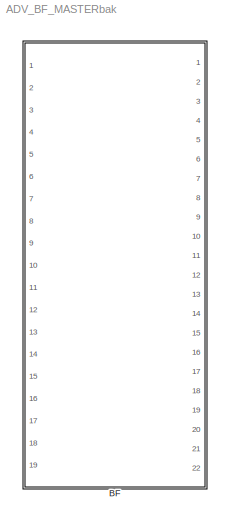
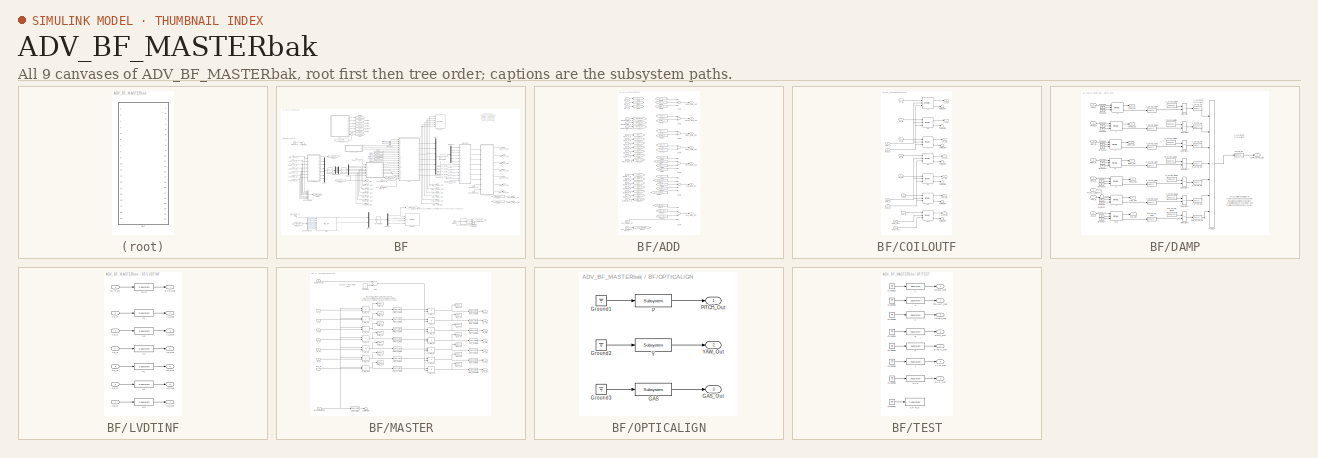
[diagram: thumbnail index - all 9 canvases of the model, root first then tree order]
MODEL ADV_BF_MASTERbak
KIND library
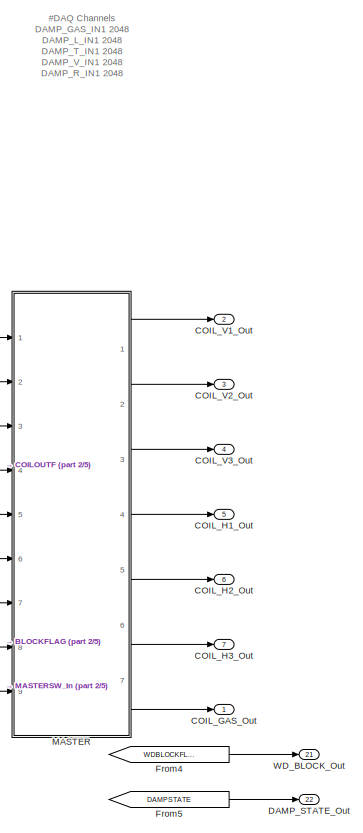
[diagram: BF - part 1/5, right side, full height]
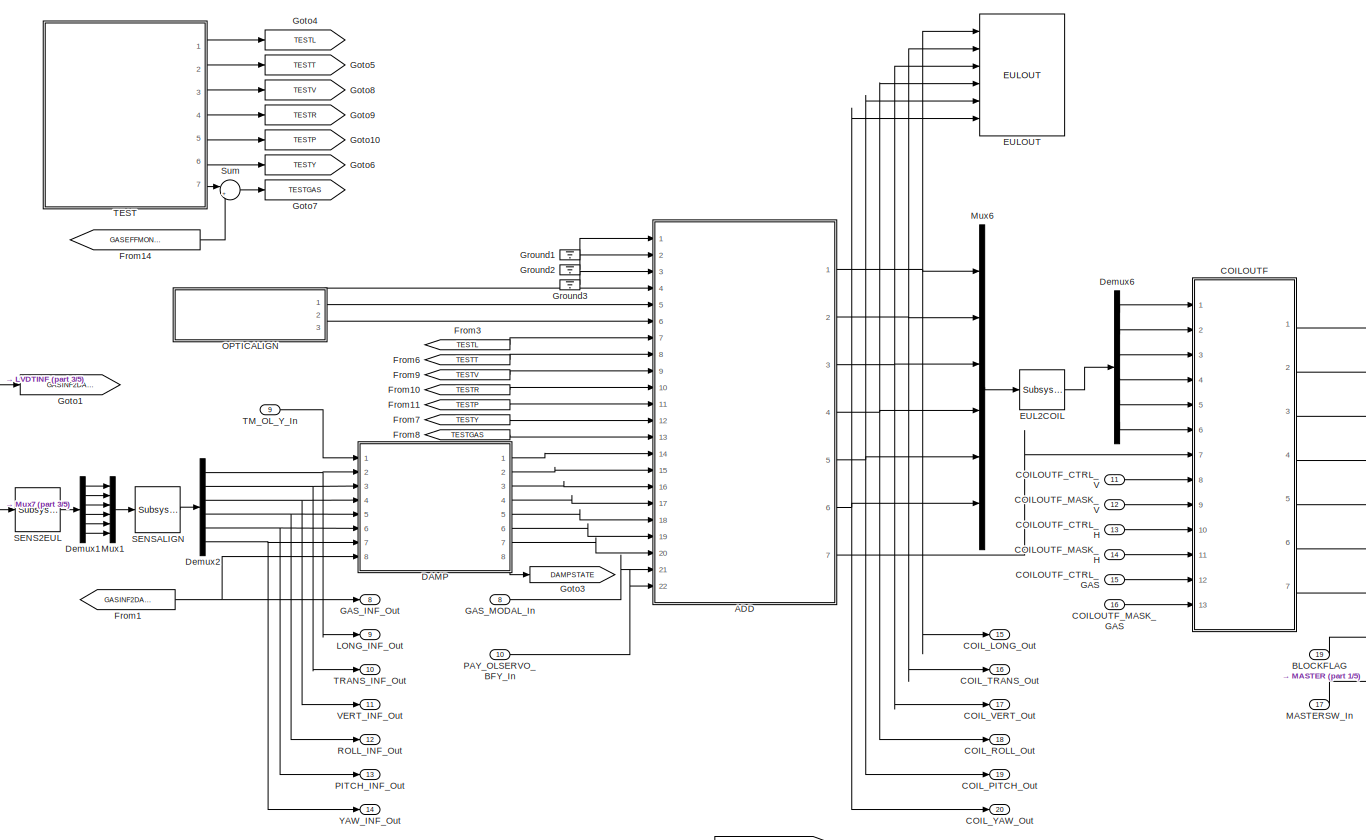
[diagram: BF - part 2/5, center side, full height]
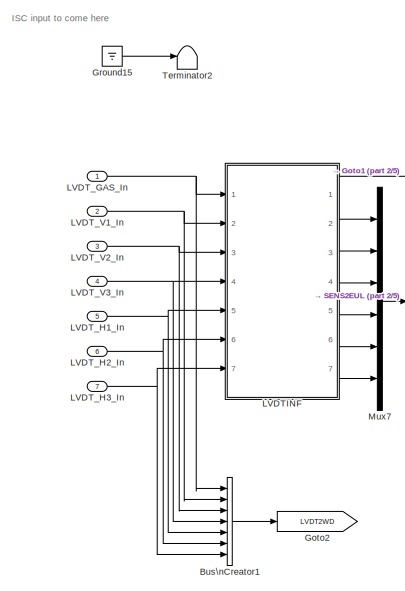
[diagram: BF - part 3/5, middle left region]
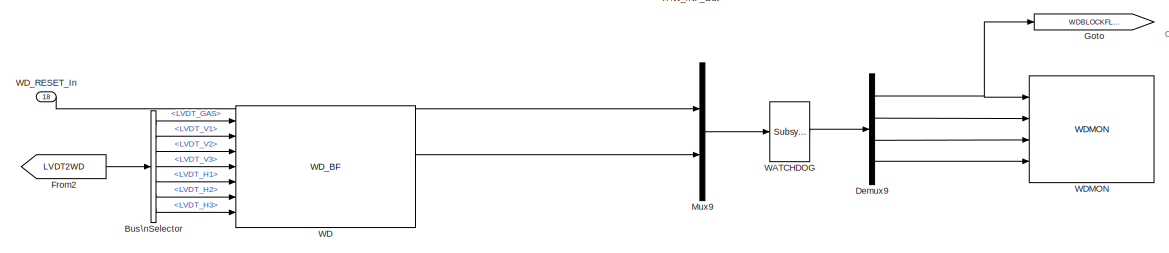
[diagram: BF - part 4/5, bottom left region]
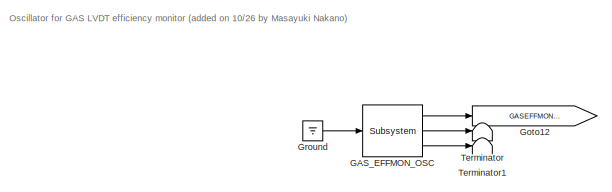
[diagram: BF - part 5/5, bottom right region]
BLOCK [SubSystem] BF
  Ports = [19, 22]
  RequestExecContextInheritance = off
  SID = 1
  Variant = off
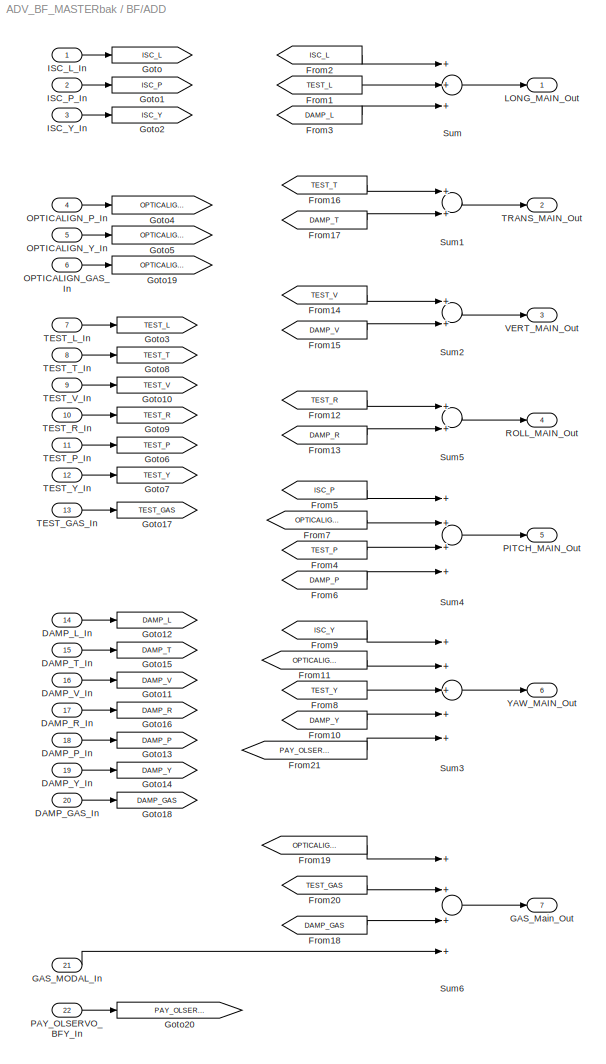
BLOCK [SubSystem] BF/ADD
  Ports = [22, 7]
  RequestExecContextInheritance = off
  SID = 21
  Variant = off
BLOCK [Inport] BF/ADD/DAMP_GAS_In
  IconDisplay = Port number
  Port = 20
  SID = 41
BLOCK [Inport] BF/ADD/DAMP_L_In
  IconDisplay = Port number
  Port = 14
  SID = 35
BLOCK [Inport] BF/ADD/DAMP_P_In
  IconDisplay = Port number
  Port = 18
  SID = 39
BLOCK [Inport] BF/ADD/DAMP_R_In
  IconDisplay = Port number
  Port = 17
  SID = 38
BLOCK [Inport] BF/ADD/DAMP_T_In
  IconDisplay = Port number
  Port = 15
  SID = 36
BLOCK [Inport] BF/ADD/DAMP_V_In
  IconDisplay = Port number
  Port = 16
  SID = 37
BLOCK [Inport] BF/ADD/DAMP_Y_In
  IconDisplay = Port number
  Port = 19
  SID = 40
BLOCK [From] BF/ADD/From1
  CloseFcn = tagdialog Close
  GotoTag = TEST_L
  SID = 43
BLOCK [From] BF/ADD/From10
  CloseFcn = tagdialog Close
  GotoTag = DAMP_Y
  SID = 44
BLOCK [From] BF/ADD/From11
  CloseFcn = tagdialog Close
  GotoTag = OPTICALIGN_Y
  SID = 45
BLOCK [From] BF/ADD/From12
  CloseFcn = tagdialog Close
  GotoTag = TEST_R
  SID = 46
BLOCK [From] BF/ADD/From13
  CloseFcn = tagdialog Close
  GotoTag = DAMP_R
  SID = 47
BLOCK [From] BF/ADD/From14
  CloseFcn = tagdialog Close
  GotoTag = TEST_V
  SID = 48
BLOCK [From] BF/ADD/From15
  CloseFcn = tagdialog Close
  GotoTag = DAMP_V
  SID = 49
BLOCK [From] BF/ADD/From16
  CloseFcn = tagdialog Close
  GotoTag = TEST_T
  SID = 50
BLOCK [From] BF/ADD/From17
  CloseFcn = tagdialog Close
  GotoTag = DAMP_T
  SID = 51
BLOCK [From] BF/ADD/From18
  CloseFcn = tagdialog Close
  GotoTag = DAMP_GAS
  SID = 52
BLOCK [From] BF/ADD/From19
  CloseFcn = tagdialog Close
  GotoTag = OPTICALIGN_GAS
  SID = 53
BLOCK [From] BF/ADD/From2
  CloseFcn = tagdialog Close
  GotoTag = ISC_L
  SID = 54
BLOCK [From] BF/ADD/From20
  CloseFcn = tagdialog Close
  GotoTag = TEST_GAS
  SID = 55
BLOCK [From] BF/ADD/From21
  CloseFcn = tagdialog Close
  GotoTag = PAY_OLSERVO_BFY
  SID = 426
BLOCK [From] BF/ADD/From3
  CloseFcn = tagdialog Close
  GotoTag = DAMP_L
  SID = 56
BLOCK [From] BF/ADD/From4
  CloseFcn = tagdialog Close
  GotoTag = TEST_P
  SID = 57
BLOCK [From] BF/ADD/From5
  CloseFcn = tagdialog Close
  GotoTag = ISC_P
  SID = 58
BLOCK [From] BF/ADD/From6
  CloseFcn = tagdialog Close
  GotoTag = DAMP_P
  SID = 59
BLOCK [From] BF/ADD/From7
  CloseFcn = tagdialog Close
  GotoTag = OPTICALIGN_P
  SID = 60
BLOCK [From] BF/ADD/From8
  CloseFcn = tagdialog Close
  GotoTag = TEST_Y
  SID = 61
BLOCK [From] BF/ADD/From9
  CloseFcn = tagdialog Close
  GotoTag = ISC_Y
  SID = 62
BLOCK [Inport] BF/ADD/GAS_MODAL_In
  IconDisplay = Port number
  Port = 21
  SID = 42
BLOCK [Outport] BF/ADD/GAS_Main_Out
  IconDisplay = Port number
  Port = 7
  SID = 96
BLOCK [Goto] BF/ADD/Goto
  GotoTag = ISC_L
  SID = 63
BLOCK [Goto] BF/ADD/Goto1
  GotoTag = ISC_P
  SID = 64
BLOCK [Goto] BF/ADD/Goto10
  GotoTag = TEST_V
  SID = 65
BLOCK [Goto] BF/ADD/Goto11
  GotoTag = DAMP_V
  SID = 66
BLOCK [Goto] BF/ADD/Goto12
  GotoTag = DAMP_L
  SID = 67
BLOCK [Goto] BF/ADD/Goto13
  GotoTag = DAMP_P
  SID = 68
BLOCK [Goto] BF/ADD/Goto14
  GotoTag = DAMP_Y
  SID = 69
BLOCK [Goto] BF/ADD/Goto15
  GotoTag = DAMP_T
  SID = 70
BLOCK [Goto] BF/ADD/Goto16
  GotoTag = DAMP_R
  SID = 71
BLOCK [Goto] BF/ADD/Goto17
  GotoTag = TEST_GAS
  SID = 72
BLOCK [Goto] BF/ADD/Goto18
  GotoTag = DAMP_GAS
  SID = 73
BLOCK [Goto] BF/ADD/Goto19
  GotoTag = OPTICALIGN_GAS
  SID = 74
BLOCK [Goto] BF/ADD/Goto2
  GotoTag = ISC_Y
  SID = 75
BLOCK [Goto] BF/ADD/Goto20
  GotoTag = PAY_OLSERVO_BFY
  SID = 425
BLOCK [Goto] BF/ADD/Goto3
  GotoTag = TEST_L
  SID = 76
BLOCK [Goto] BF/ADD/Goto4
  GotoTag = OPTICALIGN_P
  SID = 77
BLOCK [Goto] BF/ADD/Goto5
  GotoTag = OPTICALIGN_Y
  SID = 78
BLOCK [Goto] BF/ADD/Goto6
  GotoTag = TEST_P
  SID = 79
BLOCK [Goto] BF/ADD/Goto7
  GotoTag = TEST_Y
  SID = 80
BLOCK [Goto] BF/ADD/Goto8
  GotoTag = TEST_T
  SID = 81
BLOCK [Goto] BF/ADD/Goto9
  GotoTag = TEST_R
  SID = 82
BLOCK [Inport] BF/ADD/ISC_L_In
  IconDisplay = Port number
  SID = 22
BLOCK [Inport] BF/ADD/ISC_P_In
  IconDisplay = Port number
  Port = 2
  SID = 23
BLOCK [Inport] BF/ADD/ISC_Y_In
  IconDisplay = Port number
  Port = 3
  SID = 24
BLOCK [Outport] BF/ADD/LONG_MAIN_Out
  IconDisplay = Port number
  SID = 90
BLOCK [Inport] BF/ADD/OPTICALIGN_GAS_In
  IconDisplay = Port number
  Port = 6
  SID = 27
BLOCK [Inport] BF/ADD/OPTICALIGN_P_In
  IconDisplay = Port number
  Port = 4
  SID = 25
BLOCK [Inport] BF/ADD/OPTICALIGN_Y_In
  IconDisplay = Port number
  Port = 5
  SID = 26
BLOCK [Inport] BF/ADD/PAY_OLSERVO_BFY_In
  IconDisplay = Port number
  Port = 22
  SID = 423
BLOCK [Outport] BF/ADD/PITCH_MAIN_Out
  IconDisplay = Port number
  Port = 5
  SID = 94
BLOCK [Outport] BF/ADD/ROLL_MAIN_Out
  IconDisplay = Port number
  Port = 4
  SID = 93
BLOCK [Sum] BF/ADD/Sum
  InputSameDT = off
  Inputs = +++
  OutDataTypeStr = Inherit: Inherit via internal rule
  Ports = [3, 1]
  SID = 83
  SaturateOnIntegerOverflow = off
BLOCK [Sum] BF/ADD/Sum1
  InputSameDT = off
  OutDataTypeStr = Inherit: Inherit via internal rule
  Ports = [2, 1]
  SID = 84
  SaturateOnIntegerOverflow = off
BLOCK [Sum] BF/ADD/Sum2
  InputSameDT = off
  OutDataTypeStr = Inherit: Inherit via internal rule
  Ports = [2, 1]
  SID = 85
  SaturateOnIntegerOverflow = off
BLOCK [Sum] BF/ADD/Sum3
  InputSameDT = off
  Inputs = +++++
  OutDataTypeStr = Inherit: Inherit via internal rule
  Ports = [5, 1]
  SID = 86
  SaturateOnIntegerOverflow = off
BLOCK [Sum] BF/ADD/Sum4
  InputSameDT = off
  Inputs = ++++
  OutDataTypeStr = Inherit: Inherit via internal rule
  Ports = [4, 1]
  SID = 87
  SaturateOnIntegerOverflow = off
BLOCK [Sum] BF/ADD/Sum5
  InputSameDT = off
  OutDataTypeStr = Inherit: Inherit via internal rule
  Ports = [2, 1]
  SID = 88
  SaturateOnIntegerOverflow = off
BLOCK [Sum] BF/ADD/Sum6
  InputSameDT = off
  Inputs = ++++
  OutDataTypeStr = Inherit: Inherit via internal rule
  Ports = [4, 1]
  SID = 89
  SaturateOnIntegerOverflow = off
BLOCK [Inport] BF/ADD/TEST_GAS_In
  IconDisplay = Port number
  Port = 13
  SID = 34
BLOCK [Inport] BF/ADD/TEST_L_In
  IconDisplay = Port number
  Port = 7
  SID = 28
BLOCK [Inport] BF/ADD/TEST_P_In
  IconDisplay = Port number
  Port = 11
  SID = 32
BLOCK [Inport] BF/ADD/TEST_R_In
  IconDisplay = Port number
  Port = 10
  SID = 31
BLOCK [Inport] BF/ADD/TEST_T_In
  IconDisplay = Port number
  Port = 8
  SID = 29
BLOCK [Inport] BF/ADD/TEST_V_In
  IconDisplay = Port number
  Port = 9
  SID = 30
BLOCK [Inport] BF/ADD/TEST_Y_In
  IconDisplay = Port number
  Port = 12
  SID = 33
BLOCK [Outport] BF/ADD/TRANS_MAIN_Out
  IconDisplay = Port number
  Port = 2
  SID = 91
BLOCK [Outport] BF/ADD/VERT_MAIN_Out
  IconDisplay = Port number
  Port = 3
  SID = 92
BLOCK [Outport] BF/ADD/YAW_MAIN_Out
  IconDisplay = Port number
  Port = 6
  SID = 95
BLOCK [Inport] BF/BLOCKFLAG
  IconDisplay = Port number
  Port = 19
  SID = 420
BLOCK [BusCreator] BF/Bus\nCreator1
  DisplayOption = bar
  InheritFromInputs = on
  Inputs = 'LVDT_GAS','LVDT_V1','LVDT_V2','LVDT_V3','LVDT_H1','LVDT_H2','LVDT_H3'
  Ports = [7, 1]
  SID = 97
BLOCK [BusSelector] BF/Bus\nSelector
  OutputSignals = LVDT_GAS,LVDT_V1,LVDT_V2,LVDT_V3,LVDT_H1,LVDT_H2,LVDT_H3
  Ports = [1, 7]
  SID = 98
BLOCK [SubSystem] BF/COILOUTF
  Ports = [13, 7]
  RequestExecContextInheritance = off
  SID = 99
  Variant = off
BLOCK [Inport] BF/COILOUTF/CTRL_GAS
  IconDisplay = Port number
  Port = 12
  SID = 111
BLOCK [Inport] BF/COILOUTF/CTRL_H
  IconDisplay = Port number
  Port = 10
  SID = 109
BLOCK [Inport] BF/COILOUTF/CTRL_V
  IconDisplay = Port number
  Port = 8
  SID = 107
BLOCK [Reference] BF/COILOUTF/GAS  REF=cdsFiltCtrl/IIR FM with control
  AttributesFormatString = %<Tag>
  Description = cdsFiltCntrl is the standard IIR filter module (exactly the same as cdsFilt) but with added control data output 'Ctrl'. Filter module digital signal output appears on the first output, which is called 'Val'. 'Ctrl' output has a bit pattern encoding the state of filter's on/off switches (FM1 through FM10). The bit values are:\n                                                                        ...<+4621ch>  <repeated x14 — deduplicated; at blocks: GAS, H1, H2, H3, V1, V2, V3, L, P, R, T, V, Y>
  Ports = [3, 2]
  SID = 113
  SourceBlock = cdsFiltCtrl/IIR FM with control
  SourceType = SubSystem
  Tag = cdsFiltCtrl
BLOCK [Inport] BF/COILOUTF/GAS_IN
  IconDisplay = Port number
  Port = 7
  SID = 106
BLOCK [Outport] BF/COILOUTF/GAS_Out
  IconDisplay = Port number
  Port = 7
  SID = 133
BLOCK [Reference] BF/COILOUTF/H1  REF=cdsFiltCtrl/IIR FM with control
  AttributesFormatString = %<Tag>
  Ports = [3, 2]
  SID = 114
  SourceBlock = cdsFiltCtrl/IIR FM with control
  SourceType = SubSystem
  Tag = cdsFiltCtrl
BLOCK [Inport] BF/COILOUTF/H1_IN
  IconDisplay = Port number
  Port = 4
  SID = 103
BLOCK [Outport] BF/COILOUTF/H1_Out
  IconDisplay = Port number
  Port = 4
  SID = 130
BLOCK [Reference] BF/COILOUTF/H2  REF=cdsFiltCtrl/IIR FM with control
  AttributesFormatString = %<Tag>
  Ports = [3, 2]
  SID = 115
  SourceBlock = cdsFiltCtrl/IIR FM with control
  SourceType = SubSystem
  Tag = cdsFiltCtrl
BLOCK [Inport] BF/COILOUTF/H2_IN1
  IconDisplay = Port number
  Port = 5
  SID = 104
BLOCK [Outport] BF/COILOUTF/H2_Out
  IconDisplay = Port number
  Port = 5
  SID = 131
BLOCK [Reference] BF/COILOUTF/H3  REF=cdsFiltCtrl/IIR FM with control
  AttributesFormatString = %<Tag>
  Ports = [3, 2]
  SID = 116
  SourceBlock = cdsFiltCtrl/IIR FM with control
  SourceType = SubSystem
  Tag = cdsFiltCtrl
BLOCK [Inport] BF/COILOUTF/H3_IN
  IconDisplay = Port number
  Port = 6
  SID = 105
BLOCK [Outport] BF/COILOUTF/H3_Out
  IconDisplay = Port number
  Port = 6
  SID = 132
BLOCK [Inport] BF/COILOUTF/MASK_GAS
  IconDisplay = Port number
  Port = 13
  SID = 112
BLOCK [Inport] BF/COILOUTF/MASK_H
  IconDisplay = Port number
  Port = 11
  SID = 110
BLOCK [Inport] BF/COILOUTF/MASK_V
  IconDisplay = Port number
  Port = 9
  SID = 108
BLOCK [Terminator] BF/COILOUTF/Terminator1
  SID = 117
BLOCK [Terminator] BF/COILOUTF/Terminator2
  SID = 118
BLOCK [Terminator] BF/COILOUTF/Terminator3
  SID = 119
BLOCK [Terminator] BF/COILOUTF/Terminator4
  SID = 120
BLOCK [Terminator] BF/COILOUTF/Terminator5
  SID = 121
BLOCK [Terminator] BF/COILOUTF/Terminator6
  SID = 122
BLOCK [Terminator] BF/COILOUTF/Terminator7
  SID = 123
BLOCK [Reference] BF/COILOUTF/V1  REF=cdsFiltCtrl/IIR FM with control
  AttributesFormatString = %<Tag>
  Ports = [3, 2]
  SID = 124
  SourceBlock = cdsFiltCtrl/IIR FM with control
  SourceType = SubSystem
  Tag = cdsFiltCtrl
BLOCK [Inport] BF/COILOUTF/V1_IN
  IconDisplay = Port number
  SID = 100
BLOCK [Outport] BF/COILOUTF/V1_Out
  IconDisplay = Port number
  SID = 127
BLOCK [Reference] BF/COILOUTF/V2  REF=cdsFiltCtrl/IIR FM with control
  AttributesFormatString = %<Tag>
  Ports = [3, 2]
  SID = 125
  SourceBlock = cdsFiltCtrl/IIR FM with control
  SourceType = SubSystem
  Tag = cdsFiltCtrl
BLOCK [Inport] BF/COILOUTF/V2_IN
  IconDisplay = Port number
  Port = 2
  SID = 101
BLOCK [Outport] BF/COILOUTF/V2_Out
  IconDisplay = Port number
  Port = 2
  SID = 128
BLOCK [Reference] BF/COILOUTF/V3  REF=cdsFiltCtrl/IIR FM with control
  AttributesFormatString = %<Tag>
  Ports = [3, 2]
  SID = 126
  SourceBlock = cdsFiltCtrl/IIR FM with control
  SourceType = SubSystem
  Tag = cdsFiltCtrl
BLOCK [Inport] BF/COILOUTF/V3_IN
  IconDisplay = Port number
  Port = 3
  SID = 102
BLOCK [Outport] BF/COILOUTF/V3_Out
  IconDisplay = Port number
  Port = 3
  SID = 129
BLOCK [Inport] BF/COILOUTF_CTRL_GAS
  IconDisplay = Port number
  Port = 15
  SID = 14
BLOCK [Inport] BF/COILOUTF_CTRL_H
  IconDisplay = Port number
  Port = 13
  SID = 12
BLOCK [Inport] BF/COILOUTF_CTRL_V
  IconDisplay = Port number
  Port = 11
  SID = 10
BLOCK [Inport] BF/COILOUTF_MASK_GAS
  IconDisplay = Port number
  Port = 16
  SID = 15
BLOCK [Inport] BF/COILOUTF_MASK_H
  IconDisplay = Port number
  Port = 14
  SID = 13
BLOCK [Inport] BF/COILOUTF_MASK_V
  IconDisplay = Port number
  Port = 12
  SID = 11
BLOCK [Outport] BF/COIL_GAS_Out
  IconDisplay = Port number
  SID = 376
BLOCK [Outport] BF/COIL_H1_Out
  IconDisplay = Port number
  Port = 5
  SID = 380
BLOCK [Outport] BF/COIL_H2_Out
  IconDisplay = Port number
  Port = 6
  SID = 381
BLOCK [Outport] BF/COIL_H3_Out
  IconDisplay = Port number
  Port = 7
  SID = 382
BLOCK [Outport] BF/COIL_LONG_Out
  IconDisplay = Port number
  Port = 15
  SID = 396
BLOCK [Outport] BF/COIL_PITCH_Out
  IconDisplay = Port number
  Port = 19
  SID = 400
BLOCK [Outport] BF/COIL_ROLL_Out
  IconDisplay = Port number
  Port = 18
  SID = 399
BLOCK [Outport] BF/COIL_TRANS_Out
  IconDisplay = Port number
  Port = 16
  SID = 397
BLOCK [Outport] BF/COIL_V1_Out
  IconDisplay = Port number
  Port = 2
  SID = 377
BLOCK [Outport] BF/COIL_V2_Out
  IconDisplay = Port number
  Port = 3
  SID = 378
BLOCK [Outport] BF/COIL_V3_Out
  IconDisplay = Port number
  Port = 4
  SID = 379
BLOCK [Outport] BF/COIL_VERT_Out
  IconDisplay = Port number
  Port = 17
  SID = 398
BLOCK [Outport] BF/COIL_YAW_Out
  IconDisplay = Port number
  Port = 20
  SID = 401
BLOCK [SubSystem] BF/DAMP
  Ports = [8, 8]
  RequestExecContextInheritance = off
  SID = 134
  Variant = off
BLOCK [Outport] BF/DAMP/DAMP_STATE_Out
  IconDisplay = Port number
  Port = 8
  SID = 200
BLOCK [Reference] BF/DAMP/GAS  REF=cdsFiltCtrl/IIR FM with control
  AttributesFormatString = %<Tag>
  Ports = [3, 2]
  SID = 142
  SourceBlock = cdsFiltCtrl/IIR FM with control
  SourceType = SubSystem
  Tag = cdsFiltCtrl
BLOCK [Inport] BF/DAMP/GAS_In
  IconDisplay = Port number
  Port = 8
  SID = 141
BLOCK [Outport] BF/DAMP/GAS_Out
  IconDisplay = Port number
  Port = 7
  SID = 199
BLOCK [Reference] BF/DAMP/GAS_STATE_GOOD  REF=cdsEpicsIn/Subsystem
  AttributesFormatString = %<Tag>
  Description = Purpose:                                                                              \nCreate an EPICS input channel connection to the FE realtime controls.                 \n                                                                                      \nOperation:                                                                            \nOutputs value from an EPICS ai record. Value is ...<+266ch>  <repeated x7 — deduplicated; at blocks: GAS_STATE_GOOD, L_STATE_GOOD, P_STATE_GOOD, R_STATE_GOOD, T_STATE_GOOD, V_STATE_GOOD, Y_STATE_GOOD>
  Ports = [0, 1]
  SID = 143
  SourceBlock = cdsEpicsIn/Subsystem
  SourceType = SubSystem
  Tag = cdsEpicsIn
BLOCK [Reference] BF/DAMP/GAS_STATE_NOW  REF=cdsEpicsOut/Subsystem
  AttributesFormatString = %<Tag>
  Description = Purpose:                                          \nOutput a FE signal to an EPICS channel.           \n                                                  \nOperation:                                        \nTakes input value and passes it to EPICS record.  \n                                                  \nUsage:                                            \nName the part with the desired EPICS...<+14ch>  <repeated x30 — deduplicated; at blocks: GAS_STATE_NOW, GAS_STATE_OK, L_STATE_NOW, L_STATE_OK, P_STATE_NOW, P_STATE_OK, R_STATE_NOW, R_STATE_OK, STATE_OK, T_STATE_NOW, T_STATE_OK, V_STATE_NOW, V_STATE_OK, Y_STATE_NOW, Y_STATE_OK, OUT_GASMON, +14 more>
  Ports = [1, 1]
  SID = 144
  SourceBlock = cdsEpicsOut/Subsystem
  SourceType = SubSystem
  Tag = cdsEpicsOutput
BLOCK [Reference] BF/DAMP/GAS_STATE_OK  REF=cdsEpicsOut/Subsystem
  AttributesFormatString = %<Tag>
  Ports = [1, 1]
  SID = 145
  SourceBlock = cdsEpicsOut/Subsystem
  SourceType = SubSystem
  Tag = cdsEpicsOutput
BLOCK [Ground] BF/DAMP/Ground1
  SID = 146
BLOCK [Ground] BF/DAMP/Ground10
  SID = 147
BLOCK [Ground] BF/DAMP/Ground11
  SID = 148
BLOCK [Ground] BF/DAMP/Ground12
  SID = 149
BLOCK [Ground] BF/DAMP/Ground13
  SID = 150
BLOCK [Ground] BF/DAMP/Ground14
  SID = 151
BLOCK [Ground] BF/DAMP/Ground2
  SID = 152
BLOCK [Ground] BF/DAMP/Ground3
  SID = 153
BLOCK [Ground] BF/DAMP/Ground4
  SID = 154
BLOCK [Ground] BF/DAMP/Ground5
  SID = 155
BLOCK [Ground] BF/DAMP/Ground6
  SID = 156
BLOCK [Ground] BF/DAMP/Ground7
  SID = 157
BLOCK [Ground] BF/DAMP/Ground8
  SID = 158
BLOCK [Ground] BF/DAMP/Ground9
  SID = 159
BLOCK [Reference] BF/DAMP/L  REF=cdsFiltCtrl/IIR FM with control
  AttributesFormatString = %<Tag>
  Ports = [3, 2]
  SID = 160
  SourceBlock = cdsFiltCtrl/IIR FM with control
  SourceType = SubSystem
  Tag = cdsFiltCtrl
BLOCK [Inport] BF/DAMP/LONG_In
  IconDisplay = Port number
  Port = 2
  SID = 135
BLOCK [Outport] BF/DAMP/LONG_Out
  IconDisplay = Port number
  SID = 193
BLOCK [Reference] BF/DAMP/L_STATE_GOOD  REF=cdsEpicsIn/Subsystem
  AttributesFormatString = %<Tag>
  Ports = [0, 1]
  SID = 161
  SourceBlock = cdsEpicsIn/Subsystem
  SourceType = SubSystem
  Tag = cdsEpicsIn
BLOCK [Reference] BF/DAMP/L_STATE_NOW  REF=cdsEpicsOut/Subsystem
  AttributesFormatString = %<Tag>
  Ports = [1, 1]
  SID = 162
  SourceBlock = cdsEpicsOut/Subsystem
  SourceType = SubSystem
  Tag = cdsEpicsOutput
BLOCK [Reference] BF/DAMP/L_STATE_OK  REF=cdsEpicsOut/Subsystem
  AttributesFormatString = %<Tag>
  Ports = [1, 1]
  SID = 163
  SourceBlock = cdsEpicsOut/Subsystem
  SourceType = SubSystem
  Tag = cdsEpicsOutput
BLOCK [RelationalOperator] BF/DAMP/Operator
  InputSameDT = off
  Operator = ==
  OutDataTypeStr = boolean
  Ports = [2, 1]
  SID = 164
BLOCK [RelationalOperator] BF/DAMP/Operator1
  InputSameDT = off
  Operator = ==
  OutDataTypeStr = boolean
  Ports = [2, 1]
  SID = 165
BLOCK [RelationalOperator] BF/DAMP/Operator2
  InputSameDT = off
  Operator = ==
  OutDataTypeStr = boolean
  Ports = [2, 1]
  SID = 166
BLOCK [RelationalOperator] BF/DAMP/Operator3
  InputSameDT = off
  Operator = ==
  OutDataTypeStr = boolean
  Ports = [2, 1]
  SID = 167
BLOCK [RelationalOperator] BF/DAMP/Operator4
  InputSameDT = off
  Operator = ==
  OutDataTypeStr = boolean
  Ports = [2, 1]
  SID = 168
BLOCK [RelationalOperator] BF/DAMP/Operator5
  InputSameDT = off
  Operator = ==
  OutDataTypeStr = boolean
  Ports = [2, 1]
  SID = 169
BLOCK [RelationalOperator] BF/DAMP/Operator6
  InputSameDT = off
  Operator = ==
  OutDataTypeStr = boolean
  Ports = [2, 1]
  SID = 170
BLOCK [Reference] BF/DAMP/P  REF=cdsFiltCtrl/IIR FM with control
  AttributesFormatString = %<Tag>
  Ports = [3, 2]
  SID = 171
  SourceBlock = cdsFiltCtrl/IIR FM with control
  SourceType = SubSystem
  Tag = cdsFiltCtrl
BLOCK [Inport] BF/DAMP/PITCH_In
  IconDisplay = Port number
  Port = 6
  SID = 139
BLOCK [Outport] BF/DAMP/PITCH_Out
  IconDisplay = Port number
  Port = 5
  SID = 197
BLOCK [Reference] BF/DAMP/P_STATE_GOOD  REF=cdsEpicsIn/Subsystem
  AttributesFormatString = %<Tag>
  Ports = [0, 1]
  SID = 172
  SourceBlock = cdsEpicsIn/Subsystem
  SourceType = SubSystem
  Tag = cdsEpicsIn
BLOCK [Reference] BF/DAMP/P_STATE_NOW  REF=cdsEpicsOut/Subsystem
  AttributesFormatString = %<Tag>
  Ports = [1, 1]
  SID = 173
  SourceBlock = cdsEpicsOut/Subsystem
  SourceType = SubSystem
  Tag = cdsEpicsOutput
BLOCK [Reference] BF/DAMP/P_STATE_OK  REF=cdsEpicsOut/Subsystem
  AttributesFormatString = %<Tag>
  Ports = [1, 1]
  SID = 174
  SourceBlock = cdsEpicsOut/Subsystem
  SourceType = SubSystem
  Tag = cdsEpicsOutput
BLOCK [Product] BF/DAMP/Product
  InputSameDT = off
  Inputs = 7
  OutDataTypeStr = Inherit: Inherit via internal rule
  Ports = [7, 1]
  SID = 175
  SaturateOnIntegerOverflow = off
BLOCK [Reference] BF/DAMP/R  REF=cdsFiltCtrl/IIR FM with control
  AttributesFormatString = %<Tag>
  Ports = [3, 2]
  SID = 176
  SourceBlock = cdsFiltCtrl/IIR FM with control
  SourceType = SubSystem
  Tag = cdsFiltCtrl
BLOCK [Inport] BF/DAMP/ROLL_In
  IconDisplay = Port number
  Port = 5
  SID = 138
BLOCK [Outport] BF/DAMP/ROLL_Out
  IconDisplay = Port number
  Port = 4
  SID = 196
BLOCK [Reference] BF/DAMP/R_STATE_GOOD  REF=cdsEpicsIn/Subsystem
  AttributesFormatString = %<Tag>
  Ports = [0, 1]
  SID = 177
  SourceBlock = cdsEpicsIn/Subsystem
  SourceType = SubSystem
  Tag = cdsEpicsIn
BLOCK [Reference] BF/DAMP/R_STATE_NOW  REF=cdsEpicsOut/Subsystem
  AttributesFormatString = %<Tag>
  Ports = [1, 1]
  SID = 178
  SourceBlock = cdsEpicsOut/Subsystem
  SourceType = SubSystem
  Tag = cdsEpicsOutput
BLOCK [Reference] BF/DAMP/R_STATE_OK  REF=cdsEpicsOut/Subsystem
  AttributesFormatString = %<Tag>
  Ports = [1, 1]
  SID = 179
  SourceBlock = cdsEpicsOut/Subsystem
  SourceType = SubSystem
  Tag = cdsEpicsOutput
BLOCK [Reference] BF/DAMP/STATE_OK  REF=cdsEpicsOut/Subsystem
  AttributesFormatString = %<Tag>
  Ports = [1, 1]
  SID = 180
  SourceBlock = cdsEpicsOut/Subsystem
  SourceType = SubSystem
  Tag = cdsEpicsOutput
BLOCK [Sum] BF/DAMP/Sum2
  IconShape = round
  InputSameDT = off
  Inputs = -+|
  OutDataTypeStr = Inherit: Inherit via internal rule
  Ports = [2, 1]
  SID = 409
  SaturateOnIntegerOverflow = off
BLOCK [Reference] BF/DAMP/T  REF=cdsFiltCtrl/IIR FM with control
  AttributesFormatString = %<Tag>
  Ports = [3, 2]
  SID = 181
  SourceBlock = cdsFiltCtrl/IIR FM with control
  SourceType = SubSystem
  Tag = cdsFiltCtrl
BLOCK [Inport] BF/DAMP/TM_OL_Y_REF_In
  IconDisplay = Port number
  SID = 408
BLOCK [Inport] BF/DAMP/TRANS_In
  IconDisplay = Port number
  Port = 3
  SID = 136
BLOCK [Outport] BF/DAMP/TRANS_Out
  IconDisplay = Port number
  Port = 2
  SID = 194
BLOCK [Reference] BF/DAMP/T_STATE_GOOD  REF=cdsEpicsIn/Subsystem
  AttributesFormatString = %<Tag>
  Ports = [0, 1]
  SID = 182
  SourceBlock = cdsEpicsIn/Subsystem
  SourceType = SubSystem
  Tag = cdsEpicsIn
BLOCK [Reference] BF/DAMP/T_STATE_NOW  REF=cdsEpicsOut/Subsystem
  AttributesFormatString = %<Tag>
  Ports = [1, 1]
  SID = 183
  SourceBlock = cdsEpicsOut/Subsystem
  SourceType = SubSystem
  Tag = cdsEpicsOutput
BLOCK [Reference] BF/DAMP/T_STATE_OK  REF=cdsEpicsOut/Subsystem
  AttributesFormatString = %<Tag>
  Ports = [1, 1]
  SID = 184
  SourceBlock = cdsEpicsOut/Subsystem
  SourceType = SubSystem
  Tag = cdsEpicsOutput
BLOCK [Reference] BF/DAMP/V  REF=cdsFiltCtrl/IIR FM with control
  AttributesFormatString = %<Tag>
  Ports = [3, 2]
  SID = 185
  SourceBlock = cdsFiltCtrl/IIR FM with control
  SourceType = SubSystem
  Tag = cdsFiltCtrl
BLOCK [Inport] BF/DAMP/VERT_In
  IconDisplay = Port number
  Port = 4
  SID = 137
BLOCK [Outport] BF/DAMP/VERT_Out
  IconDisplay = Port number
  Port = 3
  SID = 195
BLOCK [Reference] BF/DAMP/V_STATE_GOOD  REF=cdsEpicsIn/Subsystem
  AttributesFormatString = %<Tag>
  Ports = [0, 1]
  SID = 186
  SourceBlock = cdsEpicsIn/Subsystem
  SourceType = SubSystem
  Tag = cdsEpicsIn
BLOCK [Reference] BF/DAMP/V_STATE_NOW  REF=cdsEpicsOut/Subsystem
  AttributesFormatString = %<Tag>
  Ports = [1, 1]
  SID = 187
  SourceBlock = cdsEpicsOut/Subsystem
  SourceType = SubSystem
  Tag = cdsEpicsOutput
BLOCK [Reference] BF/DAMP/V_STATE_OK  REF=cdsEpicsOut/Subsystem
  AttributesFormatString = %<Tag>
  Ports = [1, 1]
  SID = 188
  SourceBlock = cdsEpicsOut/Subsystem
  SourceType = SubSystem
  Tag = cdsEpicsOutput
BLOCK [Reference] BF/DAMP/Y  REF=cdsFiltCtrl/IIR FM with control
  AttributesFormatString = %<Tag>
  Ports = [3, 2]
  SID = 189
  SourceBlock = cdsFiltCtrl/IIR FM with control
  SourceType = SubSystem
  Tag = cdsFiltCtrl
BLOCK [Inport] BF/DAMP/YAW_In
  IconDisplay = Port number
  Port = 7
  SID = 140
BLOCK [Outport] BF/DAMP/YAW_Out
  IconDisplay = Port number
  Port = 6
  SID = 198
BLOCK [Reference] BF/DAMP/Y_STATE_GOOD  REF=cdsEpicsIn/Subsystem
  AttributesFormatString = %<Tag>
  Ports = [0, 1]
  SID = 190
  SourceBlock = cdsEpicsIn/Subsystem
  SourceType = SubSystem
  Tag = cdsEpicsIn
BLOCK [Reference] BF/DAMP/Y_STATE_NOW  REF=cdsEpicsOut/Subsystem
  AttributesFormatString = %<Tag>
  Ports = [1, 1]
  SID = 191
  SourceBlock = cdsEpicsOut/Subsystem
  SourceType = SubSystem
  Tag = cdsEpicsOutput
BLOCK [Reference] BF/DAMP/Y_STATE_OK  REF=cdsEpicsOut/Subsystem
  AttributesFormatString = %<Tag>
  Ports = [1, 1]
  SID = 192
  SourceBlock = cdsEpicsOut/Subsystem
  SourceType = SubSystem
  Tag = cdsEpicsOutput
BLOCK [Outport] BF/DAMP_STATE_Out
  IconDisplay = Port number
  Port = 22
  SID = 386
BLOCK [Demux] BF/Demux1
  DisplayOption = bar
  Outputs = 6
  Ports = [1, 6]
  SID = 206
BLOCK [Demux] BF/Demux2
  DisplayOption = bar
  Outputs = 6
  Ports = [1, 6]
  SID = 207
BLOCK [Demux] BF/Demux6
  DisplayOption = bar
  Outputs = 6
  Ports = [1, 6]
  SID = 208
BLOCK [Demux] BF/Demux9
  DisplayOption = bar
  Ports = [1, 4]
  SID = 209
BLOCK [Reference] BF/EUL2COIL  REF=cdsMuxMatrix/Subsystem
  AttributesFormatString = %<Tag>
  Description = ADL=SUS_INMATRIX.adl\nSCRIPT=generate_KisselButton.py 4 5 #CHANNEL# > #TARGET_DIR#/#FULL_PART_NAME#_KB.adl
  Ports = [1, 1]
  SID = 210
  SourceBlock = cdsMuxMatrix/Subsystem
  SourceType = SubSystem
  Tag = cdsMuxMatrix
BLOCK [Reference] BF/EULOUT  REF=VIS_LIB/EULOUT
  Ports = [6]
  SID = 403
  SourceBlock = VIS_LIB/EULOUT
  SourceType = SubSystem
BLOCK [From] BF/From1
  GotoTag = GASINF2DAMP
  SID = 212
BLOCK [From] BF/From10
  GotoTag = TESTR
  SID = 213
BLOCK [From] BF/From11
  GotoTag = TESTP
  SID = 214
BLOCK [From] BF/From14
  GotoTag = GASEFFMON_LO
  SID = 215
BLOCK [From] BF/From2
  CloseFcn = tagdialog Close
  GotoTag = LVDT2WD
  SID = 216
BLOCK [From] BF/From3
  GotoTag = TESTL
  SID = 217
BLOCK [From] BF/From4
  CloseFcn = tagdialog Close
  GotoTag = WDBLOCKFLAG
  SID = 218
BLOCK [From] BF/From5
  CloseFcn = tagdialog Close
  GotoTag = DAMPSTATE
  SID = 219
BLOCK [From] BF/From6
  GotoTag = TESTT
  SID = 220
BLOCK [From] BF/From7
  GotoTag = TESTY
  SID = 221
BLOCK [From] BF/From8
  GotoTag = TESTGAS
  SID = 222
BLOCK [From] BF/From9
  GotoTag = TESTV
  SID = 223
BLOCK [Reference] BF/GAS_EFFMON_OSC  REF=cdsOsc/Subsystem
  AttributesFormatString = %<Tag>
  Description = Oscillator
  Ports = [1, 3]
  SID = 224
  SourceBlock = cdsOsc/Subsystem
  SourceType = SubSystem
  Tag = cdsOsc
BLOCK [Outport] BF/GAS_INF_Out
  IconDisplay = Port number
  Port = 8
  SID = 428
BLOCK [Inport] BF/GAS_MODAL_In
  IconDisplay = Port number
  Port = 8
  SID = 9
BLOCK [Goto] BF/Goto
  GotoTag = WDBLOCKFLAG
  SID = 225
BLOCK [Goto] BF/Goto1
  GotoTag = GASINF2DAMP
  SID = 226
BLOCK [Goto] BF/Goto10
  GotoTag = TESTP
  SID = 227
BLOCK [Goto] BF/Goto12
  GotoTag = GASEFFMON_LO
  SID = 228
BLOCK [Goto] BF/Goto2
  GotoTag = LVDT2WD
  SID = 229
BLOCK [Goto] BF/Goto3
  GotoTag = DAMPSTATE
  SID = 230
BLOCK [Goto] BF/Goto4
  GotoTag = TESTL
  SID = 231
BLOCK [Goto] BF/Goto5
  GotoTag = TESTT
  SID = 232
BLOCK [Goto] BF/Goto6
  GotoTag = TESTY
  SID = 233
BLOCK [Goto] BF/Goto7
  GotoTag = TESTGAS
  SID = 234
BLOCK [Goto] BF/Goto8
  GotoTag = TESTV
  SID = 235
BLOCK [Goto] BF/Goto9
  GotoTag = TESTR
  SID = 236
BLOCK [Ground] BF/Ground
  SID = 237
BLOCK [Ground] BF/Ground1
  SID = 417
BLOCK [Ground] BF/Ground15
  SID = 238
BLOCK [Ground] BF/Ground2
  SID = 418
BLOCK [Ground] BF/Ground3
  SID = 419
BLOCK [Outport] BF/LONG_INF_Out
  IconDisplay = Port number
  Port = 9
  SID = 427
BLOCK [SubSystem] BF/LVDTINF
  Ports = [7, 7]
  RequestExecContextInheritance = off
  SID = 239
  Variant = off
BLOCK [Reference] BF/LVDTINF/GAS  REF=cdsFilt/Subsystem
  AttributesFormatString = %<Tag>
  Description = Purpose:                                                                                                                                                                                                                                  \nStandard CDS IIR filter module.                                                                                                                                     ...<+1302ch>  <repeated x17 — deduplicated; at blocks: GAS, H1, H2, H3, V1, V2, V3, P, Y, L, R, T, V>
  Ports = [1, 1]
  SID = 247
  SourceBlock = cdsFilt/Subsystem
  SourceType = SubSystem
  Tag = cdsFilt
BLOCK [Inport] BF/LVDTINF/GAS_In
  IconDisplay = Port number
  SID = 240
BLOCK [Outport] BF/LVDTINF/GAS_Out
  IconDisplay = Port number
  SID = 254
BLOCK [Reference] BF/LVDTINF/H1  REF=cdsFilt/Subsystem
  AttributesFormatString = %<Tag>
  Ports = [1, 1]
  SID = 248
  SourceBlock = cdsFilt/Subsystem
  SourceType = SubSystem
  Tag = cdsFilt
BLOCK [Inport] BF/LVDTINF/H1_In
  IconDisplay = Port number
  Port = 5
  SID = 244
BLOCK [Outport] BF/LVDTINF/H1_Out
  IconDisplay = Port number
  Port = 5
  SID = 258
BLOCK [Reference] BF/LVDTINF/H2  REF=cdsFilt/Subsystem
  AttributesFormatString = %<Tag>
  Ports = [1, 1]
  SID = 249
  SourceBlock = cdsFilt/Subsystem
  SourceType = SubSystem
  Tag = cdsFilt
BLOCK [Inport] BF/LVDTINF/H2_In
  IconDisplay = Port number
  Port = 6
  SID = 245
BLOCK [Outport] BF/LVDTINF/H2_Out
  IconDisplay = Port number
  Port = 6
  SID = 259
BLOCK [Reference] BF/LVDTINF/H3  REF=cdsFilt/Subsystem
  AttributesFormatString = %<Tag>
  Ports = [1, 1]
  SID = 250
  SourceBlock = cdsFilt/Subsystem
  SourceType = SubSystem
  Tag = cdsFilt
BLOCK [Inport] BF/LVDTINF/H3_In
  IconDisplay = Port number
  Port = 7
  SID = 246
BLOCK [Outport] BF/LVDTINF/H3_Out
  IconDisplay = Port number
  Port = 7
  SID = 260
BLOCK [Reference] BF/LVDTINF/V1  REF=cdsFilt/Subsystem
  AttributesFormatString = %<Tag>
  Ports = [1, 1]
  SID = 251
  SourceBlock = cdsFilt/Subsystem
  SourceType = SubSystem
  Tag = cdsFilt
BLOCK [Inport] BF/LVDTINF/V1_In
  IconDisplay = Port number
  Port = 2
  SID = 241
BLOCK [Outport] BF/LVDTINF/V1_Out
  IconDisplay = Port number
  Port = 2
  SID = 255
BLOCK [Reference] BF/LVDTINF/V2  REF=cdsFilt/Subsystem
  AttributesFormatString = %<Tag>
  Ports = [1, 1]
  SID = 252
  SourceBlock = cdsFilt/Subsystem
  SourceType = SubSystem
  Tag = cdsFilt
BLOCK [Inport] BF/LVDTINF/V2_In
  IconDisplay = Port number
  Port = 3
  SID = 242
BLOCK [Outport] BF/LVDTINF/V2_Out
  IconDisplay = Port number
  Port = 3
  SID = 256
BLOCK [Reference] BF/LVDTINF/V3  REF=cdsFilt/Subsystem
  AttributesFormatString = %<Tag>
  Ports = [1, 1]
  SID = 253
  SourceBlock = cdsFilt/Subsystem
  SourceType = SubSystem
  Tag = cdsFilt
BLOCK [Inport] BF/LVDTINF/V3_In
  IconDisplay = Port number
  Port = 4
  SID = 243
BLOCK [Outport] BF/LVDTINF/V3_Out
  IconDisplay = Port number
  Port = 4
  SID = 257
BLOCK [Inport] BF/LVDT_GAS_In
  IconDisplay = Port number
  SID = 2
BLOCK [Inport] BF/LVDT_H1_In
  IconDisplay = Port number
  Port = 5
  SID = 6
BLOCK [Inport] BF/LVDT_H2_In
  IconDisplay = Port number
  Port = 6
  SID = 7
BLOCK [Inport] BF/LVDT_H3_In
  IconDisplay = Port number
  Port = 7
  SID = 8
BLOCK [Inport] BF/LVDT_V1_In
  IconDisplay = Port number
  Port = 2
  SID = 3
BLOCK [Inport] BF/LVDT_V2_In
  IconDisplay = Port number
  Port = 3
  SID = 4
BLOCK [Inport] BF/LVDT_V3_In
  IconDisplay = Port number
  Port = 4
  SID = 5
BLOCK [SubSystem] BF/MASTER
  Ports = [9, 7]
  RequestExecContextInheritance = off
  SID = 261
  Variant = off
BLOCK [Sum] BF/MASTER/Add
  InputSameDT = off
  Inputs = -+
  OutDataTypeStr = Inherit: Inherit via internal rule
  Ports = [2, 1]
  SID = 421
  SaturateOnIntegerOverflow = off
BLOCK [Inport] BF/MASTER/BLOCKFLAG
  IconDisplay = Port number
  Port = 8
  SID = 269
BLOCK [Constant] BF/MASTER/Constant1
  SID = 273
BLOCK [Inport] BF/MASTER/GAS_In
  IconDisplay = Port number
  Port = 7
  SID = 268
BLOCK [Outport] BF/MASTER/GAS_Out
  IconDisplay = Port number
  Port = 7
  SID = 324
BLOCK [Inport] BF/MASTER/H1_In
  IconDisplay = Port number
  Port = 4
  SID = 265
BLOCK [Outport] BF/MASTER/H1_Out
  IconDisplay = Port number
  Port = 4
  SID = 321
BLOCK [Inport] BF/MASTER/H2_In
  IconDisplay = Port number
  Port = 5
  SID = 266
BLOCK [Outport] BF/MASTER/H2_Out
  IconDisplay = Port number
  Port = 5
  SID = 322
BLOCK [Inport] BF/MASTER/H3_In
  IconDisplay = Port number
  Port = 6
  SID = 267
BLOCK [Outport] BF/MASTER/H3_Out
  IconDisplay = Port number
  Port = 6
  SID = 323
BLOCK [Inport] BF/MASTER/MASTERSWITCH
  IconDisplay = Port number
  Port = 9
  SID = 270
BLOCK [Reference] BF/MASTER/OUT_GAS  REF=cdsTP/Subsystem
  AttributesFormatString = %<Tag>
  Ports = [1]
  SID = 274
  SourceBlock = cdsTP/Subsystem
  SourceType = SubSystem
  Tag = Test Point
BLOCK [Reference] BF/MASTER/OUT_GASMON  REF=cdsEpicsOut/Subsystem
  AttributesFormatString = %<Tag>
  Ports = [1, 1]
  SID = 275
  SourceBlock = cdsEpicsOut/Subsystem
  SourceType = SubSystem
  Tag = cdsEpicsOutput
BLOCK [Reference] BF/MASTER/OUT_H1  REF=cdsTP/Subsystem
  AttributesFormatString = %<Tag>
  Ports = [1]
  SID = 276
  SourceBlock = cdsTP/Subsystem
  SourceType = SubSystem
  Tag = Test Point
BLOCK [Reference] BF/MASTER/OUT_H1MON  REF=cdsEpicsOut/Subsystem
  AttributesFormatString = %<Tag>
  Ports = [1, 1]
  SID = 277
  SourceBlock = cdsEpicsOut/Subsystem
  SourceType = SubSystem
  Tag = cdsEpicsOutput
BLOCK [Reference] BF/MASTER/OUT_H2  REF=cdsTP/Subsystem
  AttributesFormatString = %<Tag>
  Ports = [1]
  SID = 278
  SourceBlock = cdsTP/Subsystem
  SourceType = SubSystem
  Tag = Test Point
BLOCK [Reference] BF/MASTER/OUT_H2MON  REF=cdsEpicsOut/Subsystem
  AttributesFormatString = %<Tag>
  Ports = [1, 1]
  SID = 279
  SourceBlock = cdsEpicsOut/Subsystem
  SourceType = SubSystem
  Tag = cdsEpicsOutput
BLOCK [Reference] BF/MASTER/OUT_H3  REF=cdsTP/Subsystem
  AttributesFormatString = %<Tag>
  Ports = [1]
  SID = 280
  SourceBlock = cdsTP/Subsystem
  SourceType = SubSystem
  Tag = Test Point
BLOCK [Reference] BF/MASTER/OUT_H3MON  REF=cdsEpicsOut/Subsystem
  AttributesFormatString = %<Tag>
  Ports = [1, 1]
  SID = 281
  SourceBlock = cdsEpicsOut/Subsystem
  SourceType = SubSystem
  Tag = cdsEpicsOutput
BLOCK [Reference] BF/MASTER/OUT_V1  REF=cdsTP/Subsystem
  AttributesFormatString = %<Tag>
  Ports = [1]
  SID = 282
  SourceBlock = cdsTP/Subsystem
  SourceType = SubSystem
  Tag = Test Point
BLOCK [Reference] BF/MASTER/OUT_V1MON  REF=cdsEpicsOut/Subsystem
  AttributesFormatString = %<Tag>
  Ports = [1, 1]
  SID = 283
  SourceBlock = cdsEpicsOut/Subsystem
  SourceType = SubSystem
  Tag = cdsEpicsOutput
BLOCK [Reference] BF/MASTER/OUT_V2  REF=cdsTP/Subsystem
  AttributesFormatString = %<Tag>
  Ports = [1]
  SID = 284
  SourceBlock = cdsTP/Subsystem
  SourceType = SubSystem
  Tag = Test Point
BLOCK [Reference] BF/MASTER/OUT_V2MON  REF=cdsEpicsOut/Subsystem
  AttributesFormatString = %<Tag>
  Ports = [1, 1]
  SID = 285
  SourceBlock = cdsEpicsOut/Subsystem
  SourceType = SubSystem
  Tag = cdsEpicsOutput
BLOCK [Reference] BF/MASTER/OUT_V3  REF=cdsTP/Subsystem
  AttributesFormatString = %<Tag>
  Ports = [1]
  SID = 286
  SourceBlock = cdsTP/Subsystem
  SourceType = SubSystem
  Tag = Test Point
BLOCK [Reference] BF/MASTER/OUT_V3MON  REF=cdsEpicsOut/Subsystem
  AttributesFormatString = %<Tag>
  Ports = [1, 1]
  SID = 287
  SourceBlock = cdsEpicsOut/Subsystem
  SourceType = SubSystem
  Tag = cdsEpicsOutput
BLOCK [Reference] BF/MASTER/PWD_GAS  REF=cdsTP/Subsystem
  AttributesFormatString = %<Tag>
  Ports = [1]
  SID = 288
  SourceBlock = cdsTP/Subsystem
  SourceType = SubSystem
  Tag = Test Point
BLOCK [Reference] BF/MASTER/PWD_GASMON  REF=cdsEpicsOut/Subsystem
  AttributesFormatString = %<Tag>
  Ports = [1, 1]
  SID = 289
  SourceBlock = cdsEpicsOut/Subsystem
  SourceType = SubSystem
  Tag = cdsEpicsOutput
BLOCK [Reference] BF/MASTER/PWD_H1  REF=cdsTP/Subsystem
  AttributesFormatString = %<Tag>
  Ports = [1]
  SID = 290
  SourceBlock = cdsTP/Subsystem
  SourceType = SubSystem
  Tag = Test Point
BLOCK [Reference] BF/MASTER/PWD_H1MON  REF=cdsEpicsOut/Subsystem
  AttributesFormatString = %<Tag>
  Ports = [1, 1]
  SID = 291
  SourceBlock = cdsEpicsOut/Subsystem
  SourceType = SubSystem
  Tag = cdsEpicsOutput
BLOCK [Reference] BF/MASTER/PWD_H2  REF=cdsTP/Subsystem
  AttributesFormatString = %<Tag>
  Ports = [1]
  SID = 292
  SourceBlock = cdsTP/Subsystem
  SourceType = SubSystem
  Tag = Test Point
BLOCK [Reference] BF/MASTER/PWD_H2MON  REF=cdsEpicsOut/Subsystem
  AttributesFormatString = %<Tag>
  Ports = [1, 1]
  SID = 293
  SourceBlock = cdsEpicsOut/Subsystem
  SourceType = SubSystem
  Tag = cdsEpicsOutput
BLOCK [Reference] BF/MASTER/PWD_H3  REF=cdsTP/Subsystem
  AttributesFormatString = %<Tag>
  Ports = [1]
  SID = 294
  SourceBlock = cdsTP/Subsystem
  SourceType = SubSystem
  Tag = Test Point
BLOCK [Reference] BF/MASTER/PWD_H3MON  REF=cdsEpicsOut/Subsystem
  AttributesFormatString = %<Tag>
  Ports = [1, 1]
  SID = 295
  SourceBlock = cdsEpicsOut/Subsystem
  SourceType = SubSystem
  Tag = cdsEpicsOutput
BLOCK [Reference] BF/MASTER/PWD_V1  REF=cdsTP/Subsystem
  AttributesFormatString = %<Tag>
  Ports = [1]
  SID = 296
  SourceBlock = cdsTP/Subsystem
  SourceType = SubSystem
  Tag = Test Point
BLOCK [Reference] BF/MASTER/PWD_V1MON  REF=cdsEpicsOut/Subsystem
  AttributesFormatString = %<Tag>
  Ports = [1, 1]
  SID = 297
  SourceBlock = cdsEpicsOut/Subsystem
  SourceType = SubSystem
  Tag = cdsEpicsOutput
BLOCK [Reference] BF/MASTER/PWD_V2  REF=cdsTP/Subsystem
  AttributesFormatString = %<Tag>
  Ports = [1]
  SID = 298
  SourceBlock = cdsTP/Subsystem
  SourceType = SubSystem
  Tag = Test Point
BLOCK [Reference] BF/MASTER/PWD_V2MON  REF=cdsEpicsOut/Subsystem
  AttributesFormatString = %<Tag>
  Ports = [1, 1]
  SID = 299
  SourceBlock = cdsEpicsOut/Subsystem
  SourceType = SubSystem
  Tag = cdsEpicsOutput
BLOCK [Reference] BF/MASTER/PWD_V3  REF=cdsTP/Subsystem
  AttributesFormatString = %<Tag>
  Ports = [1]
  SID = 300
  SourceBlock = cdsTP/Subsystem
  SourceType = SubSystem
  Tag = Test Point
BLOCK [Reference] BF/MASTER/PWD_V3MON  REF=cdsEpicsOut/Subsystem
  AttributesFormatString = %<Tag>
  Ports = [1, 1]
  SID = 301
  SourceBlock = cdsEpicsOut/Subsystem
  SourceType = SubSystem
  Tag = cdsEpicsOutput
BLOCK [Product] BF/MASTER/P_MS_GAS
  InputSameDT = off
  OutDataTypeStr = Inherit: Inherit via internal rule
  Ports = [2, 1]
  SID = 302
  SaturateOnIntegerOverflow = off
BLOCK [Product] BF/MASTER/P_MS_H1
  InputSameDT = off
  OutDataTypeStr = Inherit: Inherit via internal rule
  Ports = [2, 1]
  SID = 303
  SaturateOnIntegerOverflow = off
BLOCK [Product] BF/MASTER/P_MS_H2
  InputSameDT = off
  OutDataTypeStr = Inherit: Inherit via internal rule
  Ports = [2, 1]
  SID = 304
  SaturateOnIntegerOverflow = off
BLOCK [Product] BF/MASTER/P_MS_H3
  InputSameDT = off
  OutDataTypeStr = Inherit: Inherit via internal rule
  Ports = [2, 1]
  SID = 305
  SaturateOnIntegerOverflow = off
BLOCK [Product] BF/MASTER/P_MS_V1
  InputSameDT = off
  OutDataTypeStr = Inherit: Inherit via internal rule
  Ports = [2, 1]
  SID = 306
  SaturateOnIntegerOverflow = off
BLOCK [Product] BF/MASTER/P_MS_V2
  InputSameDT = off
  OutDataTypeStr = Inherit: Inherit via internal rule
  Ports = [2, 1]
  SID = 307
  SaturateOnIntegerOverflow = off
BLOCK [Product] BF/MASTER/P_MS_V3
  InputSameDT = off
  OutDataTypeStr = Inherit: Inherit via internal rule
  Ports = [2, 1]
  SID = 308
  SaturateOnIntegerOverflow = off
BLOCK [Product] BF/MASTER/P_WD_GAS
  InputSameDT = off
  OutDataTypeStr = Inherit: Inherit via internal rule
  Ports = [2, 1]
  SID = 309
  SaturateOnIntegerOverflow = off
BLOCK [Product] BF/MASTER/P_WD_H1
  InputSameDT = off
  OutDataTypeStr = Inherit: Inherit via internal rule
  Ports = [2, 1]
  SID = 310
  SaturateOnIntegerOverflow = off
BLOCK [Product] BF/MASTER/P_WD_H2
  InputSameDT = off
  OutDataTypeStr = Inherit: Inherit via internal rule
  Ports = [2, 1]
  SID = 311
  SaturateOnIntegerOverflow = off
BLOCK [Product] BF/MASTER/P_WD_H3
  InputSameDT = off
  OutDataTypeStr = Inherit: Inherit via internal rule
  Ports = [2, 1]
  SID = 312
  SaturateOnIntegerOverflow = off
BLOCK [Product] BF/MASTER/P_WD_V1
  InputSameDT = off
  OutDataTypeStr = Inherit: Inherit via internal rule
  Ports = [2, 1]
  SID = 313
  SaturateOnIntegerOverflow = off
BLOCK [Product] BF/MASTER/P_WD_V2
  InputSameDT = off
  OutDataTypeStr = Inherit: Inherit via internal rule
  Ports = [2, 1]
  SID = 314
  SaturateOnIntegerOverflow = off
BLOCK [Product] BF/MASTER/P_WD_V3
  InputSameDT = off
  OutDataTypeStr = Inherit: Inherit via internal rule
  Ports = [2, 1]
  SID = 315
  SaturateOnIntegerOverflow = off
BLOCK [Reference] BF/MASTER/SWITCHMON  REF=cdsEpicsOut/Subsystem
  AttributesFormatString = %<Tag>
  Ports = [1, 1]
  SID = 316
  SourceBlock = cdsEpicsOut/Subsystem
  SourceType = SubSystem
  Tag = cdsEpicsOutput
BLOCK [Terminator] BF/MASTER/Terminator2
  SID = 317
BLOCK [Inport] BF/MASTER/V1_In
  IconDisplay = Port number
  SID = 262
BLOCK [Outport] BF/MASTER/V1_Out
  IconDisplay = Port number
  SID = 318
BLOCK [Inport] BF/MASTER/V2_In
  IconDisplay = Port number
  Port = 2
  SID = 263
BLOCK [Outport] BF/MASTER/V2_Out
  IconDisplay = Port number
  Port = 2
  SID = 319
BLOCK [Inport] BF/MASTER/V3_In
  IconDisplay = Port number
  Port = 3
  SID = 264
BLOCK [Outport] BF/MASTER/V3_Out
  IconDisplay = Port number
  Port = 3
  SID = 320
BLOCK [Inport] BF/MASTERSW_In
  IconDisplay = Port number
  Port = 17
  SID = 16
BLOCK [Mux] BF/Mux1
  DisplayOption = bar
  Inputs = 6
  Ports = [6, 1]
  SID = 327
BLOCK [Mux] BF/Mux6
  DisplayOption = bar
  Inputs = 6
  Ports = [6, 1]
  SID = 328
BLOCK [Mux] BF/Mux7
  DisplayOption = bar
  Inputs = 6
  Ports = [6, 1]
  SID = 329
BLOCK [Mux] BF/Mux9
  DisplayOption = bar
  Inputs = 2
  Ports = [2, 1]
  SID = 330
BLOCK [SubSystem] BF/OPTICALIGN
  Ports = [0, 3]
  RequestExecContextInheritance = off
  SID = 332
  Variant = off
BLOCK [Reference] BF/OPTICALIGN/GAS  REF=cdsFilt/Subsystem
  AttributesFormatString = %<Tag>
  Ports = [1, 1]
  SID = 333
  SourceBlock = cdsFilt/Subsystem
  SourceType = SubSystem
  Tag = cdsFilt
BLOCK [Outport] BF/OPTICALIGN/GAS_Out
  IconDisplay = Port number
  Port = 3
  SID = 341
BLOCK [Ground] BF/OPTICALIGN/Ground1
  SID = 334
BLOCK [Ground] BF/OPTICALIGN/Ground2
  SID = 335
BLOCK [Ground] BF/OPTICALIGN/Ground3
  SID = 336
BLOCK [Reference] BF/OPTICALIGN/P  REF=cdsFilt/Subsystem
  AttributesFormatString = %<Tag>
  Ports = [1, 1]
  SID = 337
  SourceBlock = cdsFilt/Subsystem
  SourceType = SubSystem
  Tag = cdsFilt
BLOCK [Outport] BF/OPTICALIGN/PITCH_Out
  IconDisplay = Port number
  SID = 339
BLOCK [Reference] BF/OPTICALIGN/Y  REF=cdsFilt/Subsystem
  AttributesFormatString = %<Tag>
  Ports = [1, 1]
  SID = 338
  SourceBlock = cdsFilt/Subsystem
  SourceType = SubSystem
  Tag = cdsFilt
BLOCK [Outport] BF/OPTICALIGN/YAW_Out
  IconDisplay = Port number
  Port = 2
  SID = 340
BLOCK [Inport] BF/PAY_OLSERVO_BFY_In
  IconDisplay = Port number
  Port = 10
  SID = 422
BLOCK [Outport] BF/PITCH_INF_Out
  IconDisplay = Port number
  Port = 13
  SID = 394
BLOCK [Outport] BF/ROLL_INF_Out
  IconDisplay = Port number
  Port = 12
  SID = 393
BLOCK [Reference] BF/SENS2EUL  REF=cdsMuxMatrix/Subsystem
  AttributesFormatString = %<Tag>
  Description = Any size matrix. Inputs and outputs must be connected using Mux and Demux parts.
  Ports = [1, 1]
  SID = 342
  SourceBlock = cdsMuxMatrix/Subsystem
  SourceType = SubSystem
  Tag = cdsMuxMatrix
BLOCK [Reference] BF/SENSALIGN  REF=cdsMuxMatrix/Subsystem
  AttributesFormatString = %<Tag>
  Description = Any size matrix. Inputs and outputs must be connected using Mux and Demux parts.
  Ports = [1, 1]
  SID = 343
  SourceBlock = cdsMuxMatrix/Subsystem
  SourceType = SubSystem
  Tag = cdsMuxMatrix
BLOCK [Sum] BF/Sum
  IconShape = round
  InputSameDT = off
  Inputs = |++
  OutDataTypeStr = Inherit: Inherit via internal rule
  Ports = [2, 1]
  SID = 344
  SaturateOnIntegerOverflow = off
BLOCK [SubSystem] BF/TEST
  Ports = [0, 7]
  RequestExecContextInheritance = off
  SID = 345
  Variant = off
BLOCK [Reference] BF/TEST/GAS  REF=cdsFilt/Subsystem
  AttributesFormatString = %<Tag>
  Ports = [1, 1]
  SID = 346
  SourceBlock = cdsFilt/Subsystem
  SourceType = SubSystem
  Tag = cdsFilt
BLOCK [Outport] BF/TEST/GAS_Out
  IconDisplay = Port number
  Port = 7
  SID = 368
BLOCK [Ground] BF/TEST/Ground1
  SID = 347
BLOCK [Ground] BF/TEST/Ground2
  SID = 348
BLOCK [Ground] BF/TEST/Ground3
  SID = 349
BLOCK [Ground] BF/TEST/Ground4
  SID = 350
BLOCK [Ground] BF/TEST/Ground5
  SID = 351
BLOCK [Ground] BF/TEST/Ground6
  SID = 352
BLOCK [Ground] BF/TEST/Ground7
  SID = 353
BLOCK [Ground] BF/TEST/Ground8
  SID = 354
BLOCK [Reference] BF/TEST/L  REF=cdsFilt/Subsystem
  AttributesFormatString = %<Tag>
  Ports = [1, 1]
  SID = 355
  SourceBlock = cdsFilt/Subsystem
  SourceType = SubSystem
  Tag = cdsFilt
BLOCK [Outport] BF/TEST/LONG_Out
  IconDisplay = Port number
  SID = 362
BLOCK [Reference] BF/TEST/P  REF=cdsFilt/Subsystem
  AttributesFormatString = %<Tag>
  Ports = [1, 1]
  SID = 356
  SourceBlock = cdsFilt/Subsystem
  SourceType = SubSystem
  Tag = cdsFilt
BLOCK [Outport] BF/TEST/PITCH_Out
  IconDisplay = Port number
  Port = 5
  SID = 366
BLOCK [Reference] BF/TEST/R  REF=cdsFilt/Subsystem
  AttributesFormatString = %<Tag>
  Ports = [1, 1]
  SID = 357
  SourceBlock = cdsFilt/Subsystem
  SourceType = SubSystem
  Tag = cdsFilt
BLOCK [Outport] BF/TEST/ROLL_Out
  IconDisplay = Port number
  Port = 4
  SID = 365
BLOCK [Reference] BF/TEST/STATUS  REF=cdsEpicsBinIn/Subsystem
  AttributesFormatString = %<Tag>
  Description = Purpose:                                                                            \nCreate an EPICS binary (0 or 1) input channel to the FE realtime controls.          \n                                                                                    \nOperation:                                                                          \nOutputs value from an EPICS ai record. Value is binary i...<+252ch>
  Ports = [1, 1]
  SID = 358
  SourceBlock = cdsEpicsBinIn/Subsystem
  SourceType = SubSystem
  Tag = cdsEpicsBinIn
BLOCK [Reference] BF/TEST/T  REF=cdsFilt/Subsystem
  AttributesFormatString = %<Tag>
  Ports = [1, 1]
  SID = 359
  SourceBlock = cdsFilt/Subsystem
  SourceType = SubSystem
  Tag = cdsFilt
BLOCK [Outport] BF/TEST/TRANS_Out
  IconDisplay = Port number
  Port = 2
  SID = 363
BLOCK [Reference] BF/TEST/V  REF=cdsFilt/Subsystem
  AttributesFormatString = %<Tag>
  Ports = [1, 1]
  SID = 360
  SourceBlock = cdsFilt/Subsystem
  SourceType = SubSystem
  Tag = cdsFilt
BLOCK [Outport] BF/TEST/VERT_Out
  IconDisplay = Port number
  Port = 3
  SID = 364
BLOCK [Reference] BF/TEST/Y  REF=cdsFilt/Subsystem
  AttributesFormatString = %<Tag>
  Ports = [1, 1]
  SID = 361
  SourceBlock = cdsFilt/Subsystem
  SourceType = SubSystem
  Tag = cdsFilt
BLOCK [Outport] BF/TEST/YAW_Out
  IconDisplay = Port number
  Port = 6
  SID = 367
BLOCK [Inport] BF/TM_OL_Y_In
  IconDisplay = Port number
  Port = 9
  SID = 20
BLOCK [Outport] BF/TRANS_INF_Out
  IconDisplay = Port number
  Port = 10
  SID = 391
BLOCK [Terminator] BF/Terminator
  SID = 369
BLOCK [Terminator] BF/Terminator1
  SID = 370
BLOCK [Terminator] BF/Terminator2
  SID = 371
BLOCK [Outport] BF/VERT_INF_Out
  IconDisplay = Port number
  Port = 11
  SID = 392
BLOCK [Reference] BF/WATCHDOG  REF=cdsFunctionCall/Subsystem
  AttributesFormatString = %<Tag>\\n%<Description>
  Description = inline OSEMWATCHDOG <path>
  Ports = [1, 1]
  SID = 373
  SourceBlock = cdsFunctionCall/Subsystem
  SourceType = SubSystem
  Tag = cdsFunctionCall
BLOCK [Reference] BF/WD  REF=VIS_LIB/WD_BF
  Ports = [7, 1]
  SID = 374
  SourceBlock = VIS_LIB/WD_BF
  SourceType = SubSystem
BLOCK [Reference] BF/WDMON  REF=SIXOSEM_F_STAGE_MASTER/SIXOSEM_F_STAGE_MASTER/WDMON
  Ports = [4]
  SID = 375
  SourceBlock = SIXOSEM_F_STAGE_MASTER/SIXOSEM_F_STAGE_MASTER/WDMON
  SourceType = SubSystem
BLOCK [Outport] BF/WD_BLOCK_Out
  IconDisplay = Port number
  Port = 21
  SID = 385
BLOCK [Inport] BF/WD_RESET_In
  IconDisplay = Port number
  Port = 18
  SID = 17
BLOCK [Outport] BF/YAW_INF_Out
  IconDisplay = Port number
  Port = 14
  SID = 384
ANNOTATION BF: #DAQ Channels\nDAMP_GAS_IN1 2048\nDAMP_L_IN1 2048\nDAMP_T_IN1 2048\nDAMP_V_IN1 2048\nDAMP_R_IN1 2048\nDAMP_P_IN1 2048\nDAMP_Y_IN1 2048\nLVDTINF_GAS_IN1 2048
ANNOTATION BF: ISC input to come here
ANNOTATION BF: Oscillator for GAS LVDT efficiency monitor (added on 10/26 by Masayuki Nakano)
ANNOTATION BF/DAMP: 1 (one) if GOOD\n0 (zero) if BAD
ANNOTATION BF/DAMP: Each DAMP filter output bitword is \ncompared against a known good state.\nIf equal to good state, then a 1 is output \nand multiplied into the product. So, if any DOF\nis not in its good state, the whole product is 0.
ANNOTATION BF/MASTER: BLOCKFLAG is 0 (zero) if OK,\n1 if BAD
ANNOTATION BF/MASTER: If second input (WDFLAG) is not equal to zero, \nthen pass out first argument (Constant 0 -- Block Output), \notherwise pass out third argument (Constant 1 -- Pass Output)
LINE BF/ADD/DAMP_GAS_In:1 -> BF/ADD/Goto18:1
LINE BF/ADD/DAMP_L_In:1 -> BF/ADD/Goto12:1
LINE BF/ADD/DAMP_P_In:1 -> BF/ADD/Goto13:1
LINE BF/ADD/DAMP_R_In:1 -> BF/ADD/Goto16:1
LINE BF/ADD/DAMP_T_In:1 -> BF/ADD/Goto15:1
LINE BF/ADD/DAMP_V_In:1 -> BF/ADD/Goto11:1
LINE BF/ADD/DAMP_Y_In:1 -> BF/ADD/Goto14:1
LINE BF/ADD/From10:1 -> BF/ADD/Sum3:4
LINE BF/ADD/From11:1 -> BF/ADD/Sum3:2
LINE BF/ADD/From12:1 -> BF/ADD/Sum5:1
LINE BF/ADD/From13:1 -> BF/ADD/Sum5:2
LINE BF/ADD/From14:1 -> BF/ADD/Sum2:1
LINE BF/ADD/From15:1 -> BF/ADD/Sum2:2
LINE BF/ADD/From16:1 -> BF/ADD/Sum1:1
LINE BF/ADD/From17:1 -> BF/ADD/Sum1:2
LINE BF/ADD/From18:1 -> BF/ADD/Sum6:3
LINE BF/ADD/From19:1 -> BF/ADD/Sum6:1
LINE BF/ADD/From1:1 -> BF/ADD/Sum:2
LINE BF/ADD/From20:1 -> BF/ADD/Sum6:2
LINE BF/ADD/From21:1 -> BF/ADD/Sum3:5
LINE BF/ADD/From2:1 -> BF/ADD/Sum:1
LINE BF/ADD/From3:1 -> BF/ADD/Sum:3
LINE BF/ADD/From4:1 -> BF/ADD/Sum4:3
LINE BF/ADD/From5:1 -> BF/ADD/Sum4:1
LINE BF/ADD/From6:1 -> BF/ADD/Sum4:4
LINE BF/ADD/From7:1 -> BF/ADD/Sum4:2
LINE BF/ADD/From8:1 -> BF/ADD/Sum3:3
LINE BF/ADD/From9:1 -> BF/ADD/Sum3:1
LINE BF/ADD/GAS_MODAL_In:1 -> BF/ADD/Sum6:4
LINE BF/ADD/ISC_L_In:1 -> BF/ADD/Goto:1
LINE BF/ADD/ISC_P_In:1 -> BF/ADD/Goto1:1
LINE BF/ADD/ISC_Y_In:1 -> BF/ADD/Goto2:1
LINE BF/ADD/OPTICALIGN_GAS_In:1 -> BF/ADD/Goto19:1
LINE BF/ADD/OPTICALIGN_P_In:1 -> BF/ADD/Goto4:1
LINE BF/ADD/OPTICALIGN_Y_In:1 -> BF/ADD/Goto5:1
LINE BF/ADD/PAY_OLSERVO_BFY_In:1 -> BF/ADD/Goto20:1
LINE BF/ADD/Sum1:1 -> BF/ADD/TRANS_MAIN_Out:1
LINE BF/ADD/Sum2:1 -> BF/ADD/VERT_MAIN_Out:1
LINE BF/ADD/Sum3:1 -> BF/ADD/YAW_MAIN_Out:1
LINE BF/ADD/Sum4:1 -> BF/ADD/PITCH_MAIN_Out:1
LINE BF/ADD/Sum5:1 -> BF/ADD/ROLL_MAIN_Out:1
LINE BF/ADD/Sum6:1 -> BF/ADD/GAS_Main_Out:1
LINE BF/ADD/Sum:1 -> BF/ADD/LONG_MAIN_Out:1
LINE BF/ADD/TEST_GAS_In:1 -> BF/ADD/Goto17:1
LINE BF/ADD/TEST_L_In:1 -> BF/ADD/Goto3:1
LINE BF/ADD/TEST_P_In:1 -> BF/ADD/Goto6:1
LINE BF/ADD/TEST_R_In:1 -> BF/ADD/Goto9:1
LINE BF/ADD/TEST_T_In:1 -> BF/ADD/Goto8:1
LINE BF/ADD/TEST_V_In:1 -> BF/ADD/Goto10:1
LINE BF/ADD/TEST_Y_In:1 -> BF/ADD/Goto7:1
NET BF/ADD:1 -> BF/COIL_LONG_Out:1, BF/EULOUT:1, BF/Mux6:1
NET BF/ADD:2 -> BF/COIL_TRANS_Out:1, BF/EULOUT:2, BF/Mux6:2
NET BF/ADD:3 -> BF/COIL_VERT_Out:1, BF/EULOUT:3, BF/Mux6:3
NET BF/ADD:4 -> BF/COIL_ROLL_Out:1, BF/EULOUT:4, BF/Mux6:4
NET BF/ADD:5 -> BF/COIL_PITCH_Out:1, BF/EULOUT:5, BF/Mux6:5
NET BF/ADD:6 -> BF/COIL_YAW_Out:1, BF/EULOUT:6, BF/Mux6:6
LINE BF/ADD:7 -> BF/COILOUTF:7
LINE BF/BLOCKFLAG:1 -> BF/MASTER:8
LINE BF/Bus\nCreator1:1 -> BF/Goto2:1
LINE BF/Bus\nSelector:1 -> BF/WD:1
LINE BF/Bus\nSelector:2 -> BF/WD:2
LINE BF/Bus\nSelector:3 -> BF/WD:3
LINE BF/Bus\nSelector:4 -> BF/WD:4
LINE BF/Bus\nSelector:5 -> BF/WD:5
LINE BF/Bus\nSelector:6 -> BF/WD:6
LINE BF/Bus\nSelector:7 -> BF/WD:7
LINE BF/COILOUTF/CTRL_GAS:1 -> BF/COILOUTF/GAS:2
NET BF/COILOUTF/CTRL_H:1 -> BF/COILOUTF/H1:2, BF/COILOUTF/H2:2, BF/COILOUTF/H3:2
NET BF/COILOUTF/CTRL_V:1 -> BF/COILOUTF/V1:2, BF/COILOUTF/V2:2, BF/COILOUTF/V3:2
LINE BF/COILOUTF/GAS:1 -> BF/COILOUTF/GAS_Out:1
LINE BF/COILOUTF/GAS:2 -> BF/COILOUTF/Terminator7:1
LINE BF/COILOUTF/GAS_IN:1 -> BF/COILOUTF/GAS:1
LINE BF/COILOUTF/H1:1 -> BF/COILOUTF/H1_Out:1
LINE BF/COILOUTF/H1:2 -> BF/COILOUTF/Terminator4:1
LINE BF/COILOUTF/H1_IN:1 -> BF/COILOUTF/H1:1
LINE BF/COILOUTF/H2:1 -> BF/COILOUTF/H2_Out:1
LINE BF/COILOUTF/H2:2 -> BF/COILOUTF/Terminator5:1
LINE BF/COILOUTF/H2_IN1:1 -> BF/COILOUTF/H2:1
LINE BF/COILOUTF/H3:1 -> BF/COILOUTF/H3_Out:1
LINE BF/COILOUTF/H3:2 -> BF/COILOUTF/Terminator6:1
LINE BF/COILOUTF/H3_IN:1 -> BF/COILOUTF/H3:1
LINE BF/COILOUTF/MASK_GAS:1 -> BF/COILOUTF/GAS:3
NET BF/COILOUTF/MASK_H:1 -> BF/COILOUTF/H1:3, BF/COILOUTF/H2:3, BF/COILOUTF/H3:3
NET BF/COILOUTF/MASK_V:1 -> BF/COILOUTF/V1:3, BF/COILOUTF/V2:3, BF/COILOUTF/V3:3
LINE BF/COILOUTF/V1:1 -> BF/COILOUTF/V1_Out:1
LINE BF/COILOUTF/V1:2 -> BF/COILOUTF/Terminator1:1
LINE BF/COILOUTF/V1_IN:1 -> BF/COILOUTF/V1:1
LINE BF/COILOUTF/V2:1 -> BF/COILOUTF/V2_Out:1
LINE BF/COILOUTF/V2:2 -> BF/COILOUTF/Terminator2:1
LINE BF/COILOUTF/V2_IN:1 -> BF/COILOUTF/V2:1
LINE BF/COILOUTF/V3:1 -> BF/COILOUTF/V3_Out:1
LINE BF/COILOUTF/V3:2 -> BF/COILOUTF/Terminator3:1
LINE BF/COILOUTF/V3_IN:1 -> BF/COILOUTF/V3:1
LINE BF/COILOUTF:1 -> BF/MASTER:1
LINE BF/COILOUTF:2 -> BF/MASTER:2
LINE BF/COILOUTF:3 -> BF/MASTER:3
LINE BF/COILOUTF:4 -> BF/MASTER:4
LINE BF/COILOUTF:5 -> BF/MASTER:5
LINE BF/COILOUTF:6 -> BF/MASTER:6
LINE BF/COILOUTF:7 -> BF/MASTER:7
LINE BF/COILOUTF_CTRL_GAS:1 -> BF/COILOUTF:12
LINE BF/COILOUTF_CTRL_H:1 -> BF/COILOUTF:10
LINE BF/COILOUTF_CTRL_V:1 -> BF/COILOUTF:8
LINE BF/COILOUTF_MASK_GAS:1 -> BF/COILOUTF:13
LINE BF/COILOUTF_MASK_H:1 -> BF/COILOUTF:11
LINE BF/COILOUTF_MASK_V:1 -> BF/COILOUTF:9
LINE BF/DAMP/GAS:1 -> BF/DAMP/GAS_Out:1
LINE BF/DAMP/GAS:2 -> BF/DAMP/GAS_STATE_NOW:1
LINE BF/DAMP/GAS_In:1 -> BF/DAMP/GAS:1
LINE BF/DAMP/GAS_STATE_GOOD:1 -> BF/DAMP/Operator6:1
LINE BF/DAMP/GAS_STATE_NOW:1 -> BF/DAMP/Operator6:2
LINE BF/DAMP/GAS_STATE_OK:1 -> BF/DAMP/Product:7
LINE BF/DAMP/Ground10:1 -> BF/DAMP/P:3
LINE BF/DAMP/Ground11:1 -> BF/DAMP/R:3
LINE BF/DAMP/Ground12:1 -> BF/DAMP/V:3
LINE BF/DAMP/Ground13:1 -> BF/DAMP/GAS:2
LINE BF/DAMP/Ground14:1 -> BF/DAMP/GAS:3
LINE BF/DAMP/Ground1:1 -> BF/DAMP/T:2
LINE BF/DAMP/Ground2:1 -> BF/DAMP/V:2
LINE BF/DAMP/Ground3:1 -> BF/DAMP/R:2
LINE BF/DAMP/Ground4:1 -> BF/DAMP/P:2
LINE BF/DAMP/Ground5:1 -> BF/DAMP/Y:2
LINE BF/DAMP/Ground6:1 -> BF/DAMP/L:2
LINE BF/DAMP/Ground7:1 -> BF/DAMP/Y:3
LINE BF/DAMP/Ground8:1 -> BF/DAMP/L:3
LINE BF/DAMP/Ground9:1 -> BF/DAMP/T:3
LINE BF/DAMP/L:1 -> BF/DAMP/LONG_Out:1
LINE BF/DAMP/L:2 -> BF/DAMP/L_STATE_NOW:1
LINE BF/DAMP/LONG_In:1 -> BF/DAMP/L:1
LINE BF/DAMP/L_STATE_GOOD:1 -> BF/DAMP/Operator:1
LINE BF/DAMP/L_STATE_NOW:1 -> BF/DAMP/Operator:2
LINE BF/DAMP/L_STATE_OK:1 -> BF/DAMP/Product:1
LINE BF/DAMP/Operator1:1 -> BF/DAMP/T_STATE_OK:1
LINE BF/DAMP/Operator2:1 -> BF/DAMP/V_STATE_OK:1
LINE BF/DAMP/Operator3:1 -> BF/DAMP/R_STATE_OK:1
LINE BF/DAMP/Operator4:1 -> BF/DAMP/P_STATE_OK:1
LINE BF/DAMP/Operator5:1 -> BF/DAMP/Y_STATE_OK:1
LINE BF/DAMP/Operator6:1 -> BF/DAMP/GAS_STATE_OK:1
LINE BF/DAMP/Operator:1 -> BF/DAMP/L_STATE_OK:1
LINE BF/DAMP/P:1 -> BF/DAMP/PITCH_Out:1
LINE BF/DAMP/P:2 -> BF/DAMP/P_STATE_NOW:1
LINE BF/DAMP/PITCH_In:1 -> BF/DAMP/P:1
LINE BF/DAMP/P_STATE_GOOD:1 -> BF/DAMP/Operator4:1
LINE BF/DAMP/P_STATE_NOW:1 -> BF/DAMP/Operator4:2
LINE BF/DAMP/P_STATE_OK:1 -> BF/DAMP/Product:5
LINE BF/DAMP/Product:1 -> BF/DAMP/STATE_OK:1
LINE BF/DAMP/R:1 -> BF/DAMP/ROLL_Out:1
LINE BF/DAMP/R:2 -> BF/DAMP/R_STATE_NOW:1
LINE BF/DAMP/ROLL_In:1 -> BF/DAMP/R:1
LINE BF/DAMP/R_STATE_GOOD:1 -> BF/DAMP/Operator3:1
LINE BF/DAMP/R_STATE_NOW:1 -> BF/DAMP/Operator3:2
LINE BF/DAMP/R_STATE_OK:1 -> BF/DAMP/Product:4
LINE BF/DAMP/STATE_OK:1 -> BF/DAMP/DAMP_STATE_Out:1
LINE BF/DAMP/Sum2:1 -> BF/DAMP/Y:1
LINE BF/DAMP/T:1 -> BF/DAMP/TRANS_Out:1
LINE BF/DAMP/T:2 -> BF/DAMP/T_STATE_NOW:1
LINE BF/DAMP/TM_OL_Y_REF_In:1 -> BF/DAMP/Sum2:1
LINE BF/DAMP/TRANS_In:1 -> BF/DAMP/T:1
LINE BF/DAMP/T_STATE_GOOD:1 -> BF/DAMP/Operator1:1
LINE BF/DAMP/T_STATE_NOW:1 -> BF/DAMP/Operator1:2
LINE BF/DAMP/T_STATE_OK:1 -> BF/DAMP/Product:2
LINE BF/DAMP/V:1 -> BF/DAMP/VERT_Out:1
LINE BF/DAMP/V:2 -> BF/DAMP/V_STATE_NOW:1
LINE BF/DAMP/VERT_In:1 -> BF/DAMP/V:1
LINE BF/DAMP/V_STATE_GOOD:1 -> BF/DAMP/Operator2:1
LINE BF/DAMP/V_STATE_NOW:1 -> BF/DAMP/Operator2:2
LINE BF/DAMP/V_STATE_OK:1 -> BF/DAMP/Product:3
LINE BF/DAMP/Y:1 -> BF/DAMP/YAW_Out:1
LINE BF/DAMP/Y:2 -> BF/DAMP/Y_STATE_NOW:1
LINE BF/DAMP/YAW_In:1 -> BF/DAMP/Sum2:2
LINE BF/DAMP/Y_STATE_GOOD:1 -> BF/DAMP/Operator5:1
LINE BF/DAMP/Y_STATE_NOW:1 -> BF/DAMP/Operator5:2
LINE BF/DAMP/Y_STATE_OK:1 -> BF/DAMP/Product:6
LINE BF/DAMP:1 -> BF/ADD:14
LINE BF/DAMP:2 -> BF/ADD:15
LINE BF/DAMP:3 -> BF/ADD:16
LINE BF/DAMP:4 -> BF/ADD:17
LINE BF/DAMP:5 -> BF/ADD:18
LINE BF/DAMP:6 -> BF/ADD:19
LINE BF/DAMP:7 -> BF/ADD:20
LINE BF/DAMP:8 -> BF/Goto3:1
LINE BF/Demux1:1 -> BF/Mux1:1
LINE BF/Demux1:2 -> BF/Mux1:2
LINE BF/Demux1:3 -> BF/Mux1:3
LINE BF/Demux1:4 -> BF/Mux1:4
LINE BF/Demux1:5 -> BF/Mux1:5
LINE BF/Demux1:6 -> BF/Mux1:6
NET BF/Demux2:1 -> BF/DAMP:2, BF/LONG_INF_Out:1
NET BF/Demux2:2 -> BF/DAMP:3, BF/TRANS_INF_Out:1
NET BF/Demux2:3 -> BF/DAMP:4, BF/VERT_INF_Out:1
NET BF/Demux2:4 -> BF/DAMP:5, BF/ROLL_INF_Out:1
NET BF/Demux2:5 -> BF/DAMP:6, BF/PITCH_INF_Out:1
NET BF/Demux2:6 -> BF/DAMP:7, BF/YAW_INF_Out:1
LINE BF/Demux6:1 -> BF/COILOUTF:1
LINE BF/Demux6:2 -> BF/COILOUTF:2
LINE BF/Demux6:3 -> BF/COILOUTF:3
LINE BF/Demux6:4 -> BF/COILOUTF:4
LINE BF/Demux6:5 -> BF/COILOUTF:5
LINE BF/Demux6:6 -> BF/COILOUTF:6
NET BF/Demux9:1 -> BF/Goto:1, BF/WDMON:1
LINE BF/Demux9:2 -> BF/WDMON:2
LINE BF/Demux9:3 -> BF/WDMON:3
LINE BF/Demux9:4 -> BF/WDMON:4
LINE BF/EUL2COIL:1 -> BF/Demux6:1
LINE BF/From10:1 -> BF/ADD:10
LINE BF/From11:1 -> BF/ADD:11
LINE BF/From14:1 -> BF/Sum:2
NET BF/From1:1 -> BF/DAMP:8, BF/GAS_INF_Out:1
LINE BF/From2:1 -> BF/Bus\nSelector:1
LINE BF/From3:1 -> BF/ADD:7
LINE BF/From4:1 -> BF/WD_BLOCK_Out:1
LINE BF/From5:1 -> BF/DAMP_STATE_Out:1
LINE BF/From6:1 -> BF/ADD:8
LINE BF/From7:1 -> BF/ADD:12
LINE BF/From8:1 -> BF/ADD:13
LINE BF/From9:1 -> BF/ADD:9
LINE BF/GAS_EFFMON_OSC:1 -> BF/Goto12:1
LINE BF/GAS_EFFMON_OSC:2 -> BF/Terminator:1
LINE BF/GAS_EFFMON_OSC:3 -> BF/Terminator1:1
LINE BF/GAS_MODAL_In:1 -> BF/ADD:21
LINE BF/Ground15:1 -> BF/Terminator2:1
LINE BF/Ground1:1 -> BF/ADD:1
LINE BF/Ground2:1 -> BF/ADD:2
LINE BF/Ground3:1 -> BF/ADD:3
LINE BF/Ground:1 -> BF/GAS_EFFMON_OSC:1
LINE BF/LVDTINF/GAS:1 -> BF/LVDTINF/GAS_Out:1
LINE BF/LVDTINF/GAS_In:1 -> BF/LVDTINF/GAS:1
LINE BF/LVDTINF/H1:1 -> BF/LVDTINF/H1_Out:1
LINE BF/LVDTINF/H1_In:1 -> BF/LVDTINF/H1:1
LINE BF/LVDTINF/H2:1 -> BF/LVDTINF/H2_Out:1
LINE BF/LVDTINF/H2_In:1 -> BF/LVDTINF/H2:1
LINE BF/LVDTINF/H3:1 -> BF/LVDTINF/H3_Out:1
LINE BF/LVDTINF/H3_In:1 -> BF/LVDTINF/H3:1
LINE BF/LVDTINF/V1:1 -> BF/LVDTINF/V1_Out:1
LINE BF/LVDTINF/V1_In:1 -> BF/LVDTINF/V1:1
LINE BF/LVDTINF/V2:1 -> BF/LVDTINF/V2_Out:1
LINE BF/LVDTINF/V2_In:1 -> BF/LVDTINF/V2:1
LINE BF/LVDTINF/V3:1 -> BF/LVDTINF/V3_Out:1
LINE BF/LVDTINF/V3_In:1 -> BF/LVDTINF/V3:1
LINE BF/LVDTINF:1 -> BF/Goto1:1
LINE BF/LVDTINF:2 -> BF/Mux7:1
LINE BF/LVDTINF:3 -> BF/Mux7:2
LINE BF/LVDTINF:4 -> BF/Mux7:3
LINE BF/LVDTINF:5 -> BF/Mux7:4
LINE BF/LVDTINF:6 -> BF/Mux7:5
LINE BF/LVDTINF:7 -> BF/Mux7:6
NET BF/LVDT_GAS_In:1 -> BF/Bus\nCreator1:1, BF/LVDTINF:1
NET BF/LVDT_H1_In:1 -> BF/Bus\nCreator1:5, BF/LVDTINF:5
NET BF/LVDT_H2_In:1 -> BF/Bus\nCreator1:6, BF/LVDTINF:6
NET BF/LVDT_H3_In:1 -> BF/Bus\nCreator1:7, BF/LVDTINF:7
NET BF/LVDT_V1_In:1 -> BF/Bus\nCreator1:2, BF/LVDTINF:2
NET BF/LVDT_V2_In:1 -> BF/Bus\nCreator1:3, BF/LVDTINF:3
NET BF/LVDT_V3_In:1 -> BF/Bus\nCreator1:4, BF/LVDTINF:4
NET BF/MASTER/Add:1 -> BF/MASTER/P_WD_GAS:2, BF/MASTER/P_WD_H1:2, BF/MASTER/P_WD_H2:2, BF/MASTER/P_WD_H3:2, BF/MASTER/P_WD_V1:2, BF/MASTER/P_WD_V2:2, BF/MASTER/P_WD_V3:2
LINE BF/MASTER/BLOCKFLAG:1 -> BF/MASTER/Add:1
LINE BF/MASTER/Constant1:1 -> BF/MASTER/Add:2
LINE BF/MASTER/GAS_In:1 -> BF/MASTER/P_MS_GAS:2
LINE BF/MASTER/H1_In:1 -> BF/MASTER/P_MS_H1:2
LINE BF/MASTER/H2_In:1 -> BF/MASTER/P_MS_H2:2
LINE BF/MASTER/H3_In:1 -> BF/MASTER/P_MS_H3:2
NET BF/MASTER/MASTERSWITCH:1 -> BF/MASTER/P_MS_GAS:1, BF/MASTER/P_MS_H1:1, BF/MASTER/P_MS_H2:1, BF/MASTER/P_MS_H3:1, BF/MASTER/P_MS_V1:1, BF/MASTER/P_MS_V2:1, BF/MASTER/P_MS_V3:1, BF/MASTER/SWITCHMON:1
LINE BF/MASTER/OUT_GASMON:1 -> BF/MASTER/GAS_Out:1
LINE BF/MASTER/OUT_H1MON:1 -> BF/MASTER/H1_Out:1
LINE BF/MASTER/OUT_H2MON:1 -> BF/MASTER/H2_Out:1
LINE BF/MASTER/OUT_H3MON:1 -> BF/MASTER/H3_Out:1
LINE BF/MASTER/OUT_V1MON:1 -> BF/MASTER/V1_Out:1
LINE BF/MASTER/OUT_V2MON:1 -> BF/MASTER/V2_Out:1
LINE BF/MASTER/OUT_V3MON:1 -> BF/MASTER/V3_Out:1
LINE BF/MASTER/PWD_GASMON:1 -> BF/MASTER/P_WD_GAS:1
LINE BF/MASTER/PWD_H1MON:1 -> BF/MASTER/P_WD_H1:1
LINE BF/MASTER/PWD_H2MON:1 -> BF/MASTER/P_WD_H2:1
LINE BF/MASTER/PWD_H3MON:1 -> BF/MASTER/P_WD_H3:1
LINE BF/MASTER/PWD_V1MON:1 -> BF/MASTER/P_WD_V1:1
LINE BF/MASTER/PWD_V2MON:1 -> BF/MASTER/P_WD_V2:1
LINE BF/MASTER/PWD_V3MON:1 -> BF/MASTER/P_WD_V3:1
NET BF/MASTER/P_MS_GAS:1 -> BF/MASTER/PWD_GAS:1, BF/MASTER/PWD_GASMON:1
NET BF/MASTER/P_MS_H1:1 -> BF/MASTER/PWD_H1:1, BF/MASTER/PWD_H1MON:1
NET BF/MASTER/P_MS_H2:1 -> BF/MASTER/PWD_H2:1, BF/MASTER/PWD_H2MON:1
NET BF/MASTER/P_MS_H3:1 -> BF/MASTER/PWD_H3:1, BF/MASTER/PWD_H3MON:1
NET BF/MASTER/P_MS_V1:1 -> BF/MASTER/PWD_V1:1, BF/MASTER/PWD_V1MON:1
NET BF/MASTER/P_MS_V2:1 -> BF/MASTER/PWD_V2:1, BF/MASTER/PWD_V2MON:1
NET BF/MASTER/P_MS_V3:1 -> BF/MASTER/PWD_V3:1, BF/MASTER/PWD_V3MON:1
NET BF/MASTER/P_WD_GAS:1 -> BF/MASTER/OUT_GAS:1, BF/MASTER/OUT_GASMON:1
NET BF/MASTER/P_WD_H1:1 -> BF/MASTER/OUT_H1:1, BF/MASTER/OUT_H1MON:1
NET BF/MASTER/P_WD_H2:1 -> BF/MASTER/OUT_H2:1, BF/MASTER/OUT_H2MON:1
NET BF/MASTER/P_WD_H3:1 -> BF/MASTER/OUT_H3:1, BF/MASTER/OUT_H3MON:1
NET BF/MASTER/P_WD_V1:1 -> BF/MASTER/OUT_V1:1, BF/MASTER/OUT_V1MON:1
NET BF/MASTER/P_WD_V2:1 -> BF/MASTER/OUT_V2:1, BF/MASTER/OUT_V2MON:1
NET BF/MASTER/P_WD_V3:1 -> BF/MASTER/OUT_V3:1, BF/MASTER/OUT_V3MON:1
LINE BF/MASTER/SWITCHMON:1 -> BF/MASTER/Terminator2:1
LINE BF/MASTER/V1_In:1 -> BF/MASTER/P_MS_V1:2
LINE BF/MASTER/V2_In:1 -> BF/MASTER/P_MS_V2:2
LINE BF/MASTER/V3_In:1 -> BF/MASTER/P_MS_V3:2
LINE BF/MASTER:1 -> BF/COIL_V1_Out:1
LINE BF/MASTER:2 -> BF/COIL_V2_Out:1
LINE BF/MASTER:3 -> BF/COIL_V3_Out:1
LINE BF/MASTER:4 -> BF/COIL_H1_Out:1
LINE BF/MASTER:5 -> BF/COIL_H2_Out:1
LINE BF/MASTER:6 -> BF/COIL_H3_Out:1
LINE BF/MASTER:7 -> BF/COIL_GAS_Out:1
LINE BF/MASTERSW_In:1 -> BF/MASTER:9
LINE BF/Mux1:1 -> BF/SENSALIGN:1
LINE BF/Mux6:1 -> BF/EUL2COIL:1
LINE BF/Mux7:1 -> BF/SENS2EUL:1
LINE BF/Mux9:1 -> BF/WATCHDOG:1
LINE BF/OPTICALIGN/GAS:1 -> BF/OPTICALIGN/GAS_Out:1
LINE BF/OPTICALIGN/Ground1:1 -> BF/OPTICALIGN/P:1
LINE BF/OPTICALIGN/Ground2:1 -> BF/OPTICALIGN/Y:1
LINE BF/OPTICALIGN/Ground3:1 -> BF/OPTICALIGN/GAS:1
LINE BF/OPTICALIGN/P:1 -> BF/OPTICALIGN/PITCH_Out:1
LINE BF/OPTICALIGN/Y:1 -> BF/OPTICALIGN/YAW_Out:1
LINE BF/OPTICALIGN:1 -> BF/ADD:4
LINE BF/OPTICALIGN:2 -> BF/ADD:5
LINE BF/OPTICALIGN:3 -> BF/ADD:6
LINE BF/PAY_OLSERVO_BFY_In:1 -> BF/ADD:22
LINE BF/SENS2EUL:1 -> BF/Demux1:1
LINE BF/SENSALIGN:1 -> BF/Demux2:1
LINE BF/Sum:1 -> BF/Goto7:1
LINE BF/TEST/GAS:1 -> BF/TEST/GAS_Out:1
LINE BF/TEST/Ground1:1 -> BF/TEST/L:1
LINE BF/TEST/Ground2:1 -> BF/TEST/T:1
LINE BF/TEST/Ground3:1 -> BF/TEST/V:1
LINE BF/TEST/Ground4:1 -> BF/TEST/R:1
LINE BF/TEST/Ground5:1 -> BF/TEST/P:1
LINE BF/TEST/Ground6:1 -> BF/TEST/Y:1
LINE BF/TEST/Ground7:1 -> BF/TEST/STATUS:1
LINE BF/TEST/Ground8:1 -> BF/TEST/GAS:1
LINE BF/TEST/L:1 -> BF/TEST/LONG_Out:1
LINE BF/TEST/P:1 -> BF/TEST/PITCH_Out:1
LINE BF/TEST/R:1 -> BF/TEST/ROLL_Out:1
LINE BF/TEST/T:1 -> BF/TEST/TRANS_Out:1
LINE BF/TEST/V:1 -> BF/TEST/VERT_Out:1
LINE BF/TEST/Y:1 -> BF/TEST/YAW_Out:1
LINE BF/TEST:1 -> BF/Goto4:1
LINE BF/TEST:2 -> BF/Goto5:1
LINE BF/TEST:3 -> BF/Goto8:1
LINE BF/TEST:4 -> BF/Goto9:1
LINE BF/TEST:5 -> BF/Goto10:1
LINE BF/TEST:6 -> BF/Goto6:1
LINE BF/TEST:7 -> BF/Sum:1
LINE BF/TM_OL_Y_In:1 -> BF/DAMP:1
LINE BF/WATCHDOG:1 -> BF/Demux9:1
LINE BF/WD:1 -> BF/Mux9:2
LINE BF/WD_RESET_In:1 -> BF/Mux9:1
note: NET lines group one-source signal fan-out (src -> all destinations, sorted); 1:1 wires keep LINE
note: 1 file-system path scrubbed to <path> (not preserved elsewhere — flat text is the only slx artifact)
